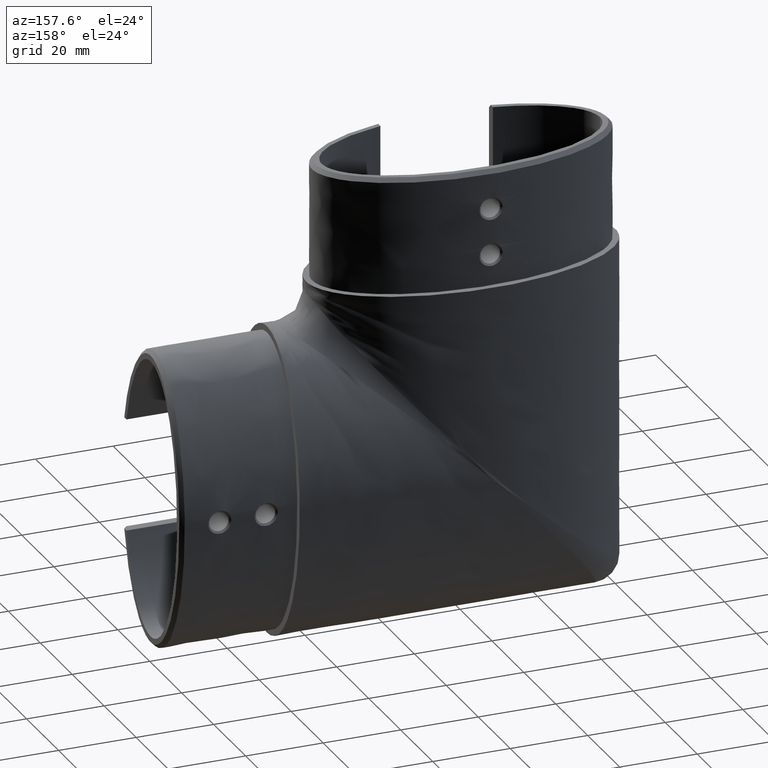
[diagram: clean part render]
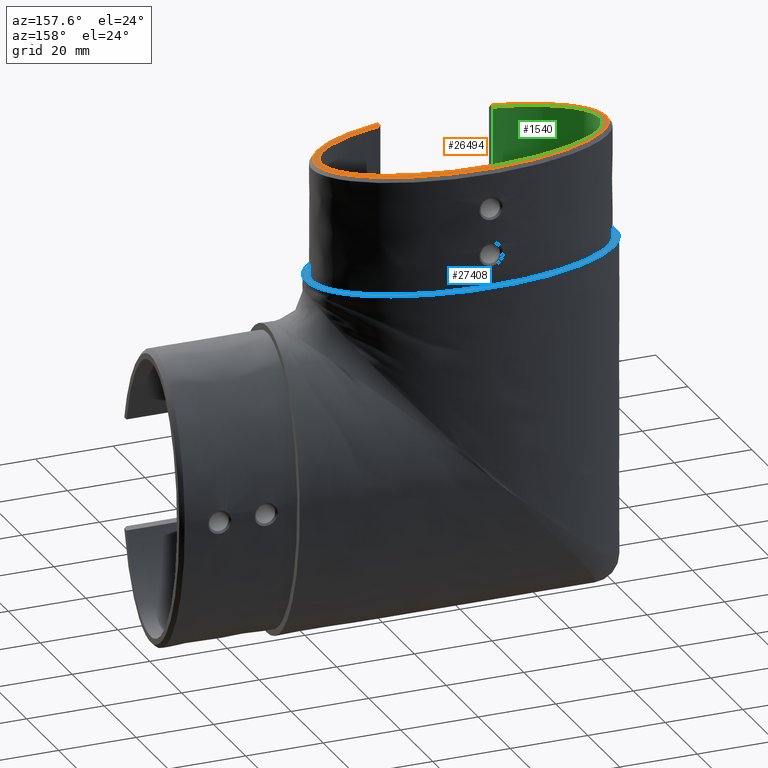
[diagram: same view with three faces highlighted in distinct colors, each labeled with its STEP entity id]
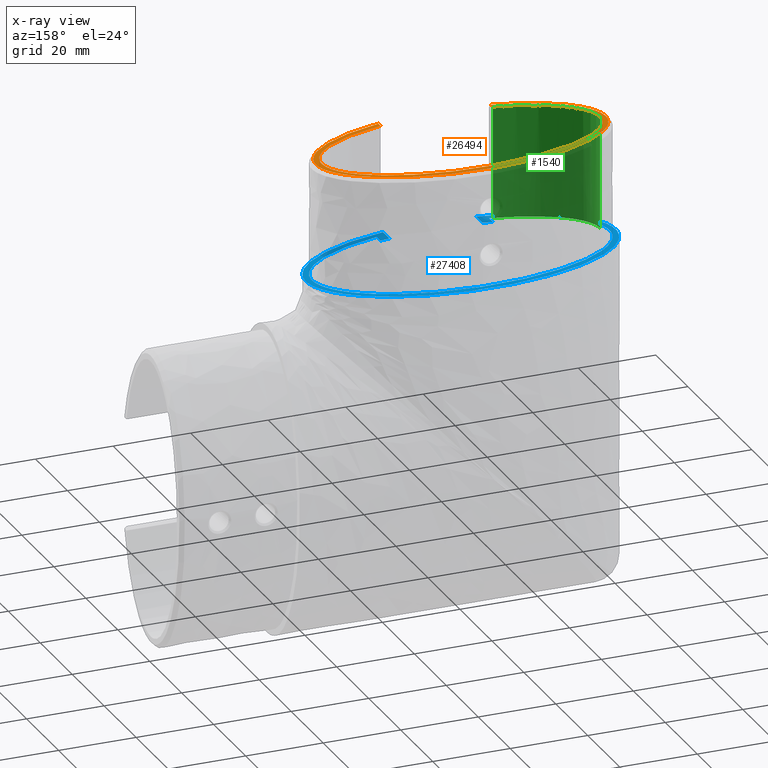
[diagram: x-ray of the same camera — body ghosted, the three highlighted faces saturated]
A machine part, auxiliary view with three faces highlighted in distinct colors.
The next image is the same camera in x-ray (body ghosted, the three faces saturated) — at least one of them is partly hidden behind the body in this view.
Their STEP definitions:

[orange] entity #26494 — the highlighted planar face has unit normal (-0, 0, 1).
#20 = CARTESIAN_POINT ( 'NONE',  ( -27.75625437119612116, 8.684330229393760092, 30.00000000000001421 ) ) ;
#21 = CARTESIAN_POINT ( 'NONE',  ( 31.53686695416843477, 11.09648706796510886, 30.00000000000000711 ) ) ;
#49 = CARTESIAN_POINT ( 'NONE',  ( 32.23620492371725987, 29.48315290797916788, 29.99999999999999645 ) ) ;
#55 = CARTESIAN_POINT ( 'NONE',  ( 18.47106287937606339, 36.11127991858981545, 30.00000000000000355 ) ) ;
#157 = CARTESIAN_POINT ( 'NONE',  ( 28.21540143420996571, 32.19652246505564364, 29.99999999999999289 ) ) ;
#223 = CARTESIAN_POINT ( 'NONE',  ( -19.69258355749042622, 5.377688444888367059, 30.00000000000000000 ) ) ;
#252 = CARTESIAN_POINT ( 'NONE',  ( 31.27149928018838665, 30.23151510577086043, 30.00000000000000000 ) ) ;
#359 = CARTESIAN_POINT ( 'NONE',  ( 22.80363132194519338, 34.69254381547936816, 29.99999999999999289 ) ) ;
#425 = CARTESIAN_POINT ( 'NONE',  ( -21.90295106909007927, 6.107957894857359626, 29.99999999999999645 ) ) ;
#463 = CARTESIAN_POINT ( 'NONE',  ( 11.71078598005746940, 37.59757147044558678, 29.99999999999999645 ) ) ;
#490 = CARTESIAN_POINT ( 'NONE',  ( 37.35317361241639844, 21.47296554199077434, 30.00000000000000355 ) ) ;
#564 = CARTESIAN_POINT ( 'NONE',  ( -9.140141870354364428, 37.96773719960258120, 29.99999999999999645 ) ) ;
#570 = CARTESIAN_POINT ( 'NONE',  ( -35.89999999999999147, 20.56608700989831107, 30.00000000000000000 ) ) ;
#594 = CARTESIAN_POINT ( 'NONE',  ( 36.31238577101395748, 16.40888288448667254, 30.00000000000000000 ) ) ;
#672 = CARTESIAN_POINT ( 'NONE',  ( 9.428729353266481539, 37.93105575060257451, 29.99999999999999645 ) ) ;
#703 = CARTESIAN_POINT ( 'NONE',  ( 36.09708279821652610, 25.11542483968434780, 30.00000000000000711 ) ) ;
#775 = CARTESIAN_POINT ( 'NONE',  ( -17.82414356455813476, 36.28947083610975710, 29.99999999999999289 ) ) ;
#800 = CARTESIAN_POINT ( 'NONE',  ( 35.31196770259911943, 26.31067859651901486, 30.00000000000000355 ) ) ;
#875 = CARTESIAN_POINT ( 'NONE',  ( 3.859754063651354539, 38.43318852312978606, 30.00000000000000000 ) ) ;
#904 = CARTESIAN_POINT ( 'NONE',  ( 37.35386866517234949, 19.70178754102391494, 30.00000000000000000 ) ) ;
#947 = CARTESIAN_POINT ( 'NONE',  ( 35.89999999999999858, 53.69826102969496873, 30.00000000000000355 ) ) ;
#973 = CARTESIAN_POINT ( 'NONE',  ( -31.11163452900958859, 30.34791141534390491, 29.99999999999999645 ) ) ;
#1075 = CARTESIAN_POINT ( 'NONE',  ( -27.49919347332508579, 32.58587294257395683, 29.99999999999999645 ) ) ;
#1175 = CARTESIAN_POINT ( 'NONE',  ( -20.05534448727390640, 35.64132305637039622, 30.00000000000000000 ) ) ;
#1278 = CARTESIAN_POINT ( 'NONE',  ( -33.31773329205817191, 28.53629018251151095, 30.00000000000000711 ) ) ;
#1298 = VECTOR ( 'NONE', #26916, 1000.000000000000000 ) ;
#1381 = CARTESIAN_POINT ( 'NONE',  ( -30.86266932134321550, 30.52649342310460057, 30.00000000000000355 ) ) ;
#1492 = CARTESIAN_POINT ( 'NONE',  ( -37.12062986383204333, 22.69207566813072319, 30.00000000000000355 ) ) ;
#1494 = CARTESIAN_POINT ( 'NONE',  ( 19.99719435143600421, 5.469892904183267568, 30.00000000000000711 ) ) ;
#1602 = CARTESIAN_POINT ( 'NONE',  ( -37.33837518877969330, 21.63607322082220108, 30.00000000000000000 ) ) ;
#1707 = CARTESIAN_POINT ( 'NONE',  ( -35.27746530465375230, 26.35730604571223523, 30.00000000000000000 ) ) ;
#1807 = CARTESIAN_POINT ( 'NONE',  ( -37.38743518700968593, 20.07704634336417371, 30.00000000000000000 ) ) ;
#1911 = CARTESIAN_POINT ( 'NONE',  ( -25.66517274795494075, 7.638232179531705413, 30.00000000000000000 ) ) ;
#2019 = CARTESIAN_POINT ( 'NONE',  ( -25.73294930230220245, 7.669618678584012805, 29.99999999999999645 ) ) ;
#2021 = CARTESIAN_POINT ( 'NONE',  ( 35.70020704207298934, 15.37680832233618133, 29.99999999999999289 ) ) ;
#2115 = CARTESIAN_POINT ( 'NONE',  ( -24.07327723913373774, 6.940982018402727327, 29.99999999999999645 ) ) ;
#2117 = CARTESIAN_POINT ( 'NONE',  ( 33.80448764737680278, 13.06803771549400572, 30.00000000000001421 ) ) ;
#2216 = CARTESIAN_POINT ( 'NONE',  ( -35.08967326832806322, 14.52767604521967115, 30.00000000000000355 ) ) ;
#2217 = CARTESIAN_POINT ( 'NONE',  ( 29.69992384549579612, 9.823326418699993567, 30.00000000000000711 ) ) ;
#2313 = CARTESIAN_POINT ( 'NONE',  ( -33.44101525091340221, 12.71314667281936117, 29.99999999999999289 ) ) ;
#2314 = CARTESIAN_POINT ( 'NONE',  ( 31.63145272643745542, 11.16864692614603882, 30.00000000000000711 ) ) ;
#2344 = CARTESIAN_POINT ( 'NONE',  ( 16.13581621809745670, 36.71530155551322849, 30.00000000000000355 ) ) ;
#2405 = CARTESIAN_POINT ( 'NONE',  ( 33.59333176298969192, 12.85916362206465280, 30.00000000000000000 ) ) ;
#2438 = CARTESIAN_POINT ( 'NONE',  ( 16.42118405838869677, 36.64692011493993817, 30.00000000000000000 ) ) ;
#2535 = CARTESIAN_POINT ( 'NONE',  ( 24.97817293560418861, 33.80401271918356088, 30.00000000000000711 ) ) ;
#2631 = CARTESIAN_POINT ( 'NONE',  ( 17.91499445623703934, 36.26574763743379748, 30.00000000000000000 ) ) ;
#2702 = CARTESIAN_POINT ( 'NONE',  ( -19.08039287125141570, 5.194900343118041164, 29.99999999999999645 ) ) ;
#2732 = CARTESIAN_POINT ( 'NONE',  ( 19.59215751258812688, 35.78616298864212553, 29.99999999999999645 ) ) ;
#2834 = CARTESIAN_POINT ( 'NONE',  ( 7.132137105793803222, 38.19016272999364503, 30.00000000000000711 ) ) ;
#2863 = CARTESIAN_POINT ( 'NONE',  ( 36.86867840775673955, 23.48037631244525159, 30.00000000000000000 ) ) ;
#2944 = CARTESIAN_POINT ( 'NONE',  ( -9.720752695141298361, 37.89374238939829809, 30.00000000000000711 ) ) ;
#2974 = CARTESIAN_POINT ( 'NONE',  ( 37.27346434602478098, 19.12091075805971130, 30.00000000000000355 ) ) ;
#3042 = CARTESIAN_POINT ( 'NONE',  ( 4.246157844609703247, 38.41216662294732487, 30.00000000000000711 ) ) ;
#3072 = CARTESIAN_POINT ( 'NONE',  ( 37.31103317313432655, 21.76493679789231450, 30.00000000000001421 ) ) ;
#3143 = CARTESIAN_POINT ( 'NONE',  ( 7.326009067964477595, 38.17119141671808080, 30.00000000000000711 ) ) ;
#3168 = CARTESIAN_POINT ( 'NONE',  ( 37.08136304201973132, 18.30772073839711567, 30.00000000000000355 ) ) ;
#3242 = CARTESIAN_POINT ( 'NONE',  ( -28.61149353471264334, 31.96711945597192184, 30.00000000000001066 ) ) ;
#3273 = CARTESIAN_POINT ( 'NONE',  ( 36.77818818169988191, 17.41898120180018594, 29.99999999999999289 ) ) ;
#3291 = CARTESIAN_POINT ( 'NONE',  ( -35.89999999999998437, 13.80579487331595523, 30.00000000000000000 ) ) ;
#3342 = CARTESIAN_POINT ( 'NONE',  ( -25.39692336053690269, 33.61869013850711951, 30.00000000000000355 ) ) ;
#3440 = CARTESIAN_POINT ( 'NONE',  ( -18.37869988423659606, 36.13720330116518653, 30.00000000000000000 ) ) ;
#3515 = CARTESIAN_POINT ( 'NONE',  ( 35.90000000000000568, 20.56608700989832172, 30.00000000000000000 ) ) ;
#3542 = CARTESIAN_POINT ( 'NONE',  ( -25.01061376236001621, 33.78967174517391214, 29.99999999999998934 ) ) ;
#3642 = CARTESIAN_POINT ( 'NONE',  ( -24.94648665066137383, 33.81794221853966320, 30.00000000000000355 ) ) ;
#3748 = CARTESIAN_POINT ( 'NONE',  ( -37.23037364495003487, 22.21554017988041352, 30.00000000000000711 ) ) ;
#3854 = CARTESIAN_POINT ( 'NONE',  ( -34.54293878837263065, 27.26784634192063805, 30.00000000000000000 ) ) ;
#3922 = ORIENTED_EDGE ( 'NONE', *, *, #5767, .T. ) ;
#3961 = CARTESIAN_POINT ( 'NONE',  ( -37.38110169467502431, 21.24483343450022943, 29.99999999999999289 ) ) ;
#4070 = CARTESIAN_POINT ( 'NONE',  ( -37.40204365532528641, 20.66142340720032422, 30.00000000000000000 ) ) ;
#4175 = CARTESIAN_POINT ( 'NONE',  ( -36.74322666225123157, 23.80813124015941185, 29.99999999999999645 ) ) ;
#4283 = CARTESIAN_POINT ( 'NONE',  ( -34.25651712554969208, 13.54458978605053510, 29.99999999999999645 ) ) ;
#4383 = CARTESIAN_POINT ( 'NONE',  ( -25.22904638682861034, 7.437609167365478946, 30.00000000000000711 ) ) ;
#4385 = CARTESIAN_POINT ( 'NONE',  ( 34.23895539218408857, 13.52557918677793580, 29.99999999999999645 ) ) ;
#4481 = CARTESIAN_POINT ( 'NONE',  ( -32.70383234723821886, 12.03360224959206803, 30.00000000000000000 ) ) ;
#4483 = CARTESIAN_POINT ( 'NONE',  ( 25.53600502635249470, 7.578690979297867614, 29.99999999999999645 ) ) ;
#4576 = CARTESIAN_POINT ( 'NONE',  ( -23.61794141833521365, 6.756482654982484348, 30.00000000000000000 ) ) ;
#4577 = CARTESIAN_POINT ( 'NONE',  ( 25.98453851675396109, 7.785495164610103380, 30.00000000000000000 ) ) ;
#4608 = CARTESIAN_POINT ( 'NONE',  ( 20.83418191272491882, 35.38999064646698400, 30.00000000000000711 ) ) ;
#4672 = CARTESIAN_POINT ( 'NONE',  ( -35.01314755946093982, 14.43031754109106402, 29.99999999999998934 ) ) ;
#4673 = CARTESIAN_POINT ( 'NONE',  ( 27.67098332800016536, 8.638356022706501491, 30.00000000000000355 ) ) ;
#4702 = CARTESIAN_POINT ( 'NONE',  ( 18.61227373320673806, 36.07154693436604731, 30.00000000000000000 ) ) ;
#4767 = CARTESIAN_POINT ( 'NONE',  ( 34.97880232921297505, 14.38698826182104895, 29.99999999999999645 ) ) ;
#4803 = CARTESIAN_POINT ( 'NONE',  ( 25.51939064355895326, 33.56159258028120007, 29.99999999999999645 ) ) ;
#4897 = CARTESIAN_POINT ( 'NONE',  ( 18.94053826870215218, 35.97780048696428423, 30.00000000000000355 ) ) ;
#4995 = CARTESIAN_POINT ( 'NONE',  ( 32.00614364241882015, 29.66881997890253686, 30.00000000000000000 ) ) ;
#5066 = CARTESIAN_POINT ( 'NONE',  ( -21.57914021984875319, 5.994493412848650671, 30.00000000000000711 ) ) ;
#5092 = CARTESIAN_POINT ( 'NONE',  ( 9.620466727644426896, 37.90601533889621066, 29.99999999999998934 ) ) ;
#5139 = EDGE_LOOP ( 'NONE', ( #3922, #25768, #24105, #14653, #13000, #27767 ) ) ;
#5193 = CARTESIAN_POINT ( 'NONE',  ( -11.26034436849421816, 37.66961572908685696, 30.00000000000000355 ) ) ;
#5219 = CARTESIAN_POINT ( 'NONE',  ( 37.15530570951803213, 18.58883681230290819, 30.00000000000000711 ) ) ;
#5243 = CARTESIAN_POINT ( 'NONE',  ( -14.50000000000001421, 5.411376512662530835, 30.00000000000000000 ) ) ;
#5296 = CARTESIAN_POINT ( 'NONE',  ( -6.242444949822655964, 38.27055267879634926, 29.99999999999999289 ) ) ;
#5325 = CARTESIAN_POINT ( 'NONE',  ( 37.39778576534909860, 20.78897947278990443, 30.00000000000000000 ) ) ;
#5392 = CARTESIAN_POINT ( 'NONE',  ( -15.84661918083351750, 36.78311755788021742, 29.99999999999998579 ) ) ;
#5423 = CARTESIAN_POINT ( 'NONE',  ( 35.35669156360419407, 26.24986347021572541, 30.00000000000001066 ) ) ;
#5498 = CARTESIAN_POINT ( 'NONE',  ( 13.41522369589922903, 37.29720203601961259, 30.00000000000000355 ) ) ;
#5524 = CARTESIAN_POINT ( 'NONE',  ( 37.40076991928464878, 20.59146738977563729, 30.00000000000000711 ) ) ;
#5569 = VERTEX_POINT ( 'NONE', #24762 ) ;
#5595 = CARTESIAN_POINT ( 'NONE',  ( -31.80178378791379856, 29.83405390560208659, 30.00000000000000355 ) ) ;
#5612 = CARTESIAN_POINT ( 'NONE',  ( -14.50000000000001421, 5.411376512662530835, 30.00000000000000000 ) ) ;
#5621 = CARTESIAN_POINT ( 'NONE',  ( 37.27935106198907533, 21.95959116340516815, 30.00000000000000000 ) ) ;
#5694 = CARTESIAN_POINT ( 'NONE',  ( -29.10664303062490177, 31.67288060758130541, 30.00000000000000355 ) ) ;
#5767 = EDGE_CURVE ( 'NONE', #6187, #11424, #26544, .T. ) ;
#5789 = CARTESIAN_POINT ( 'NONE',  ( -29.16682835289015330, 31.63643065186882808, 29.99999999999999645 ) ) ;
#5892 = CARTESIAN_POINT ( 'NONE',  ( -32.13637269694731202, 29.56411851267075619, 30.00000000000001066 ) ) ;
#5994 = CARTESIAN_POINT ( 'NONE',  ( -29.53093677014807028, 31.41495734359348901, 30.00000000000000000 ) ) ;
#6099 = CARTESIAN_POINT ( 'NONE',  ( -35.86088231453241093, 15.62488184416469039, 30.00000000000000000 ) ) ;
#6187 = VERTEX_POINT ( 'NONE', #11065 ) ;
#6208 = CARTESIAN_POINT ( 'NONE',  ( -34.58887684922432726, 27.21489192212640873, 30.00000000000000355 ) ) ;
#6318 = CARTESIAN_POINT ( 'NONE',  ( -35.30593659817990471, 26.31886100520238259, 30.00000000000000355 ) ) ;
#6418 = CARTESIAN_POINT ( 'NONE',  ( -36.39315343100143707, 24.56821096001793592, 30.00000000000000000 ) ) ;
#6518 = CARTESIAN_POINT ( 'NONE',  ( -36.29979599571387894, 16.38501565529408666, 30.00000000000000355 ) ) ;
#6621 = CARTESIAN_POINT ( 'NONE',  ( -31.65738306849468486, 11.18853969218782574, 30.00000000000000000 ) ) ;
#6622 = CARTESIAN_POINT ( 'NONE',  ( 21.23987839106805708, 5.877866513642609370, 29.99999999999999645 ) ) ;
#6722 = CARTESIAN_POINT ( 'NONE',  ( -24.70235269102087727, 7.204337782952262792, 29.99999999999999645 ) ) ;
#6724 = CARTESIAN_POINT ( 'NONE',  ( 35.99465411480991861, 15.83864520924608676, 30.00000000000000711 ) ) ;
#6818 = CARTESIAN_POINT ( 'NONE',  ( -34.09503202381738873, 13.36973458758753708, 30.00000000000000355 ) ) ;
#6820 = CARTESIAN_POINT ( 'NONE',  ( 27.56599434173386953, 8.582114496891710687, 30.00000000000001066 ) ) ;
#6919 = CARTESIAN_POINT ( 'NONE',  ( -35.72558056244621127, 15.41545569088092016, 30.00000000000000000 ) ) ;
#6920 = CARTESIAN_POINT ( 'NONE',  ( 30.08213078064092372, 10.06703141988821137, 30.00000000000000711 ) ) ;
#6955 = CARTESIAN_POINT ( 'NONE',  ( 24.53642336976793459, 33.99759059061277355, 30.00000000000001066 ) ) ;
#7022 = CARTESIAN_POINT ( 'NONE',  ( -33.89575224913317442, 13.16097889777457297, 30.00000000000000711 ) ) ;
#7023 = CARTESIAN_POINT ( 'NONE',  ( 34.91809983627998548, 14.31136216404213002, 29.99999999999998579 ) ) ;
#7054 = CARTESIAN_POINT ( 'NONE',  ( 31.07047897839390771, 30.37767934680066517, 30.00000000000000711 ) ) ;
#7116 = CARTESIAN_POINT ( 'NONE',  ( 33.41485094020975311, 12.68814711609164547, 29.99999999999999289 ) ) ;
#7150 = CARTESIAN_POINT ( 'NONE',  ( 31.02999444254065509, 30.40684243290833066, 30.00000000000001066 ) ) ;
#7244 = CARTESIAN_POINT ( 'NONE',  ( 16.70384259648169589, 36.57821738241698029, 30.00000000000000355 ) ) ;
#7342 = CARTESIAN_POINT ( 'NONE',  ( 29.08145038196349930, 31.68808557742980270, 30.00000000000001066 ) ) ;
#7439 = CARTESIAN_POINT ( 'NONE',  ( -3.915004837257814785, 38.43031151202990259, 30.00000000000000711 ) ) ;
#7503 = CARTESIAN_POINT ( 'NONE',  ( 14.49999999999991473, 4.052433417156948714, 30.00000000000000000 ) ) ;
#7542 = CARTESIAN_POINT ( 'NONE',  ( 8.856965514599549394, 38.00353764119314803, 29.99999999999999645 ) ) ;
#7572 = CARTESIAN_POINT ( 'NONE',  ( 36.30179242555406915, 16.38879481307530739, 29.99999999999999645 ) ) ;
#7646 = CARTESIAN_POINT ( 'NONE',  ( -13.75439312492137311, 37.23053852675568720, 29.99999999999999645 ) ) ;
#7677 = CARTESIAN_POINT ( 'NONE',  ( 35.94300431054741551, 25.37371723813187074, 30.00000000000000711 ) ) ;
#7752 = CARTESIAN_POINT ( 'NONE',  ( -16.12737042618579153, 36.71730568064581490, 29.99999999999999289 ) ) ;
#7780 = CARTESIAN_POINT ( 'NONE',  ( 37.21381595809954490, 18.83048170266159715, 30.00000000000000355 ) ) ;
#7857 = CARTESIAN_POINT ( 'NONE',  ( -9.234757137328575283, 37.95584650800709881, 29.99999999999999289 ) ) ;
#7881 = CARTESIAN_POINT ( 'NONE',  ( 36.50401136476521913, 24.34074818805865448, 30.00000000000000000 ) ) ;
#7948 = CARTESIAN_POINT ( 'NONE',  ( -31.45298495959665530, 30.10003202093875174, 30.00000000000000355 ) ) ;
#7971 = CARTESIAN_POINT ( 'NONE',  ( 37.38229967799026809, 19.99853319746576474, 30.00000000000000355 ) ) ;
#8038 = CARTESIAN_POINT ( 'NONE',  ( -22.70346195068699657, 34.73034047908714683, 29.99999999999999645 ) ) ;
#8107 = CARTESIAN_POINT ( 'NONE',  ( 33.12701074304219873, 28.71444657891863628, 30.00000000000000355 ) ) ;
#8132 = CARTESIAN_POINT ( 'NONE',  ( -32.21037492563909410, 29.50403515923922626, 30.00000000000000711 ) ) ;
#8142 = CARTESIAN_POINT ( 'NONE',  ( 34.25517624226808522, 27.59600063880377618, 29.99999999999999289 ) ) ;
#8231 = CARTESIAN_POINT ( 'NONE',  ( -32.36539081823776343, 29.37670707587346186, 29.99999999999999289 ) ) ;
#8339 = CARTESIAN_POINT ( 'NONE',  ( -33.82148186256711142, 28.04949506370438783, 30.00000000000000711 ) ) ;
#8450 = CARTESIAN_POINT ( 'NONE',  ( -37.18853896324839781, 22.40615063156443654, 30.00000000000000355 ) ) ;
#8557 = CARTESIAN_POINT ( 'NONE',  ( -35.23455417563650371, 26.41494199994486536, 29.99999999999999645 ) ) ;
#8559 = CARTESIAN_POINT ( 'NONE',  ( 23.16677044490061732, 6.578412015891201392, 30.00000000000000355 ) ) ;
#8660 = CARTESIAN_POINT ( 'NONE',  ( -37.28771489791380134, 19.20195865000008695, 30.00000000000001066 ) ) ;
#8766 = CARTESIAN_POINT ( 'NONE',  ( -37.15073804024051896, 18.57057214363877051, 29.99999999999999645 ) ) ;
#8767 = CARTESIAN_POINT ( 'NONE',  ( 18.72980991063700174, 5.093207287127182070, 30.00000000000000000 ) ) ;
#8863 = CARTESIAN_POINT ( 'NONE',  ( -37.21945946284662199, 18.86293886484855165, 30.00000000000000000 ) ) ;
#8901 = CARTESIAN_POINT ( 'NONE',  ( 32.46907919461574465, 29.29183020084200706, 29.99999999999999645 ) ) ;
#8964 = CARTESIAN_POINT ( 'NONE',  ( -35.56481562893917925, 15.17391914408746878, 29.99999999999999289 ) ) ;
#8966 = CARTESIAN_POINT ( 'NONE',  ( 21.66229301907408455, 6.022052201287825035, 30.00000000000000000 ) ) ;
#9062 = CARTESIAN_POINT ( 'NONE',  ( -34.45630496120732289, 13.76536844784195246, 29.99999999999999645 ) ) ;
#9064 = CARTESIAN_POINT ( 'NONE',  ( 29.45699481342954584, 9.670283068433445095, 30.00000000000001066 ) ) ;
#9161 = CARTESIAN_POINT ( 'NONE',  ( -35.19508128848025308, 14.66419025552307254, 29.99999999999999645 ) ) ;
#9163 = CARTESIAN_POINT ( 'NONE',  ( 33.38067238796806180, 12.65562456330499863, 29.99999999999999289 ) ) ;
#9168 = CARTESIAN_POINT ( 'NONE',  ( 0.000000000000000000, 0.000000000000000000, 30.00000000000000000 ) ) ;
#9221 = VERTEX_POINT ( 'NONE', #12598 ) ;
#9262 = CARTESIAN_POINT ( 'NONE',  ( -34.68105784768106759, 14.02207807083942726, 30.00000000000001066 ) ) ;
#9263 = CARTESIAN_POINT ( 'NONE',  ( 27.62901936777984346, 8.615843465989991401, 30.00000000000000000 ) ) ;
#9294 = CARTESIAN_POINT ( 'NONE',  ( 29.63208434242947931, 31.34960751881643048, 29.99999999999999645 ) ) ;
#9362 = CARTESIAN_POINT ( 'NONE',  ( -29.84337929165578984, 9.914990087721065493, 30.00000000000000000 ) ) ;
#9363 = CARTESIAN_POINT ( 'NONE',  ( 35.16291403661661974, 14.62062266050094728, 29.99999999999998934 ) ) ;
#9394 = CARTESIAN_POINT ( 'NONE',  ( 23.36088860913357834, 34.47834490874350877, 30.00000000000000000 ) ) ;
#9454 = CARTESIAN_POINT ( 'NONE',  ( 34.20629045934995816, 13.49022030130722882, 29.99999999999999645 ) ) ;
#9488 = CARTESIAN_POINT ( 'NONE',  ( 15.67187098978691040, 36.82452554757637131, 30.00000000000000000 ) ) ;
#9560 = CARTESIAN_POINT ( 'NONE',  ( -16.05934737936240708, 4.377231913228806448, 30.00000000000001066 ) ) ;
#9592 = CARTESIAN_POINT ( 'NONE',  ( 13.97846176521334627, 37.18617070917361644, 30.00000000000000711 ) ) ;
#9691 = CARTESIAN_POINT ( 'NONE',  ( 24.00119029479109400, 34.22330538386174936, 30.00000000000000000 ) ) ;
#9787 = CARTESIAN_POINT ( 'NONE',  ( 2.699837114246557146, 38.48422343069690754, 29.99999999999999289 ) ) ;
#9865 = CARTESIAN_POINT ( 'NONE',  ( 33.42299505233553703, 28.43798833702230766, 29.99999999999999289 ) ) ;
#9896 = CARTESIAN_POINT ( 'NONE',  ( -5.079861403985546531, 38.35994918504304252, 30.00000000000000711 ) ) ;
#9928 = CARTESIAN_POINT ( 'NONE',  ( 36.24519056055015653, 16.28273493894059243, 30.00000000000000355 ) ) ;
#10001 = CARTESIAN_POINT ( 'NONE',  ( -8.948070330572186037, 37.99148172901633558, 30.00000000000000355 ) ) ;
#10029 = CARTESIAN_POINT ( 'NONE',  ( 35.81696031178963580, 25.57831269877074476, 30.00000000000001066 ) ) ;
#10102 = CARTESIAN_POINT ( 'NONE',  ( -17.17026319787837352, 36.46259227521620261, 30.00000000000000000 ) ) ;
#10133 = CARTESIAN_POINT ( 'NONE',  ( 36.98403739372334087, 17.97856205541977914, 30.00000000000000000 ) ) ;
#10205 = CARTESIAN_POINT ( 'NONE',  ( -5.662103928362324012, 38.31864680294837910, 30.00000000000000711 ) ) ;
#10230 = CARTESIAN_POINT ( 'NONE',  ( 36.88559706950700701, 17.69679423015372066, 30.00000000000000000 ) ) ;
#10302 = CARTESIAN_POINT ( 'NONE',  ( -18.85030491729638769, 36.00471471241100119, 30.00000000000000711 ) ) ;
#10326 = CARTESIAN_POINT ( 'NONE',  ( 35.45937914860530071, 26.10782548873038778, 30.00000000000000000 ) ) ;
#10394 = CARTESIAN_POINT ( 'NONE',  ( -22.83531873661569378, 34.68055966256680733, 29.99999999999999645 ) ) ;
#10493 = CARTESIAN_POINT ( 'NONE',  ( -34.15876146560048454, 27.69642284783029851, 30.00000000000000000 ) ) ;
#10566 = CARTESIAN_POINT ( 'NONE',  ( -14.49999999999946709, -1.469008476346425012E-12, 30.00000000000000000 ) ) ;
#10598 = CARTESIAN_POINT ( 'NONE',  ( -26.99443437825647862, 32.84647928443376230, 30.00000000000000355 ) ) ;
#10704 = CARTESIAN_POINT ( 'NONE',  ( -21.62116622386289322, 35.12520325694519840, 30.00000000000000355 ) ) ;
#10810 = CARTESIAN_POINT ( 'NONE',  ( -35.76669453226465833, 15.47824034122009351, 29.99999999999999645 ) ) ;
#10921 = CARTESIAN_POINT ( 'NONE',  ( -36.51953141760063914, 24.30819918018161019, 29.99999999999999645 ) ) ;
#10923 = CARTESIAN_POINT ( 'NONE',  ( 19.43244520678550913, 5.297952120367221518, 30.00000000000000355 ) ) ;
#11029 = CARTESIAN_POINT ( 'NONE',  ( -36.81040747634622079, 17.50128048321677454, 30.00000000000000000 ) ) ;
#11065 = CARTESIAN_POINT ( 'NONE',  ( 14.50000000000001421, 5.411376512662530835, 30.00000000000000000 ) ) ;
#11138 = CARTESIAN_POINT ( 'NONE',  ( -35.45248537093220875, 26.11894879715243079, 30.00000000000000000 ) ) ;
#11140 = CARTESIAN_POINT ( 'NONE',  ( 15.28253307527617011, 4.215428271092964252, 30.00000000000000711 ) ) ;
#11241 = CARTESIAN_POINT ( 'NONE',  ( -37.09117919341774439, 18.33819074934516635, 29.99999999999999645 ) ) ;
#11243 = CARTESIAN_POINT ( 'NONE',  ( 18.96003370753750161, 5.159750950583388729, 29.99999999999999289 ) ) ;
#11302 = AXIS2_PLACEMENT_3D ( 'NONE', #9168, #16126, #20525 ) ;
#11338 = CARTESIAN_POINT ( 'NONE',  ( -27.33286378225900037, 8.456711936223829440, 30.00000000000000711 ) ) ;
#11340 = CARTESIAN_POINT ( 'NONE',  ( 22.21787790627428194, 6.219061756411206510, 30.00000000000000355 ) ) ;
#11424 = VERTEX_POINT ( 'NONE', #7503 ) ;
#11442 = CARTESIAN_POINT ( 'NONE',  ( -29.37355149171167668, 9.616016463921576829, 30.00000000000000000 ) ) ;
#11444 = CARTESIAN_POINT ( 'NONE',  ( 23.84696225059944652, 6.847083626600752204, 30.00000000000000000 ) ) ;
#11541 = CARTESIAN_POINT ( 'NONE',  ( -35.39979860315485638, 14.93796798621237976, 30.00000000000001066 ) ) ;
#11543 = CARTESIAN_POINT ( 'NONE',  ( 29.65960027536042887, 9.797747918501386266, 30.00000000000000000 ) ) ;
#11569 = CARTESIAN_POINT ( 'NONE',  ( 32.07921743102066614, 29.61039401302264906, 30.00000000000000711 ) ) ;
#11636 = CARTESIAN_POINT ( 'NONE',  ( -31.69756352144278111, 11.21946642680824091, 30.00000000000000000 ) ) ;
#11637 = CARTESIAN_POINT ( 'NONE',  ( 34.15712071592395915, 13.43721923695791531, 30.00000000000000000 ) ) ;
#11666 = CARTESIAN_POINT ( 'NONE',  ( 29.05880166543085963, 31.70172589823856057, 30.00000000000000000 ) ) ;
#11734 = CARTESIAN_POINT ( 'NONE',  ( -34.99697683696459194, 14.40991942114240132, 30.00000000000000000 ) ) ;
#11735 = CARTESIAN_POINT ( 'NONE',  ( 28.06706032371823767, 8.851851617385252169, 30.00000000000001421 ) ) ;
#11769 = CARTESIAN_POINT ( 'NONE',  ( 27.17724954843793128, 32.75234245240980613, 30.00000000000000711 ) ) ;
#11802 = DIRECTION ( 'NONE',  ( -7.434327193616546984E-14, -1.000000000000000000, 0.000000000000000000 ) ) ;
#11859 = CARTESIAN_POINT ( 'NONE',  ( 15.11167737628795038, 36.95088956143150227, 30.00000000000000000 ) ) ;
#11928 = CARTESIAN_POINT ( 'NONE',  ( -21.43963284168442840, 5.946298379177665794, 30.00000000000000000 ) ) ;
#11960 = CARTESIAN_POINT ( 'NONE',  ( 31.00852542563293213, 30.42225873205432052, 30.00000000000000355 ) ) ;
#12058 = CARTESIAN_POINT ( 'NONE',  ( 22.87372223943471639, 34.66599575215310125, 30.00000000000000000 ) ) ;
#12156 = CARTESIAN_POINT ( 'NONE',  ( -12.03061816423732289, 37.54561185016928704, 29.99999999999999645 ) ) ;
#12257 = CARTESIAN_POINT ( 'NONE',  ( 12.18771059249086797, 37.51828871201280435, 30.00000000000000355 ) ) ;
#12288 = CARTESIAN_POINT ( 'NONE',  ( 36.55725245866951667, 24.22764731094153845, 30.00000000000000000 ) ) ;
#12363 = CARTESIAN_POINT ( 'NONE',  ( -14.32825958064363903, 37.11638916620982798, 29.99999999999999289 ) ) ;
#12388 = CARTESIAN_POINT ( 'NONE',  ( 37.20428214899975927, 22.34464067664035980, 30.00000000000000711 ) ) ;
#12466 = CARTESIAN_POINT ( 'NONE',  ( -4.301847813335221815, 38.40898192378490705, 30.00000000000000000 ) ) ;
#12493 = CARTESIAN_POINT ( 'NONE',  ( 36.41769676738885408, 16.61023702312990480, 30.00000000000000355 ) ) ;
#12559 = CARTESIAN_POINT ( 'NONE',  ( -1.582254905982513504, 38.51937057083596727, 30.00000000000000355 ) ) ;
#12585 = CARTESIAN_POINT ( 'NONE',  ( 37.26128826061226107, 22.05906339360853607, 30.00000000000000711 ) ) ;
#12598 = CARTESIAN_POINT ( 'NONE',  ( 35.90000000000000568, 20.56608700989832172, 30.00000000000000000 ) ) ;
#12646 = CARTESIAN_POINT ( 'NONE',  ( 35.90000000000000568, 20.56608700989832172, 30.00000000000000000 ) ) ;
#12656 = CARTESIAN_POINT ( 'NONE',  ( -32.59352557468158551, 29.18641047040032177, 29.99999999999999645 ) ) ;
#12750 = CARTESIAN_POINT ( 'NONE',  ( -26.84480742794946906, 32.92273118661307763, 29.99999999999999645 ) ) ;
#12854 = CARTESIAN_POINT ( 'NONE',  ( -23.25190087407820982, 34.52206449488385687, 29.99999999999999289 ) ) ;
#12954 = CARTESIAN_POINT ( 'NONE',  ( -31.09353576140091135, 30.36101478805632681, 29.99999999999999645 ) ) ;
#13000 = ORIENTED_EDGE ( 'NONE', *, *, #26772, .F. ) ;
#13060 = CARTESIAN_POINT ( 'NONE',  ( -24.98994645233630862, 33.79879667919931308, 29.99999999999999645 ) ) ;
#13173 = CARTESIAN_POINT ( 'NONE',  ( -36.58742724638607768, 16.96274150037104533, 29.99999999999999645 ) ) ;
#13276 = CARTESIAN_POINT ( 'NONE',  ( -35.89711609045283325, 25.44837920414420651, 30.00000000000000000 ) ) ;
#13278 = CARTESIAN_POINT ( 'NONE',  ( 19.00436261520895087, 5.172660670230941449, 29.99999999999999645 ) ) ;
#13379 = CARTESIAN_POINT ( 'NONE',  ( -35.31941849448371329, 26.30056380328634802, 29.99999999999999645 ) ) ;
#13381 = CARTESIAN_POINT ( 'NONE',  ( 17.75562245207522238, 4.821624381201211840, 30.00000000000000000 ) ) ;
#13482 = CARTESIAN_POINT ( 'NONE',  ( -36.70285043035902817, 17.22993923438328778, 30.00000000000000711 ) ) ;
#13484 = CARTESIAN_POINT ( 'NONE',  ( 20.64551997632133506, 5.679040139995421121, 30.00000000000000355 ) ) ;
#13585 = CARTESIAN_POINT ( 'NONE',  ( -36.94441292590239101, 23.26018032775368383, 30.00000000000000000 ) ) ;
#13692 = CARTESIAN_POINT ( 'NONE',  ( -28.87920616150194064, 9.315019756195541234, 29.99999999999999645 ) ) ;
#13694 = CARTESIAN_POINT ( 'NONE',  ( 23.30065644942052927, 6.630789448532204311, 30.00000000000000000 ) ) ;
#13786 = CARTESIAN_POINT ( 'NONE',  ( -27.71208567952310631, 8.660477849922898486, 30.00000000000000355 ) ) ;
#13787 = CARTESIAN_POINT ( 'NONE',  ( 31.99049235839174088, 11.44467823263688011, 30.00000000000000000 ) ) ;
#13888 = CARTESIAN_POINT ( 'NONE',  ( -26.81999581574131142, 8.191722685867960152, 29.99999999999998934 ) ) ;
#13890 = CARTESIAN_POINT ( 'NONE',  ( 30.57973588070889903, 10.39917268158429486, 30.00000000000000711 ) ) ;
#13982 = CARTESIAN_POINT ( 'NONE',  ( -23.52633546408408449, 6.719907329562611054, 30.00000000000000355 ) ) ;
#13983 = CARTESIAN_POINT ( 'NONE',  ( 34.25438536112890375, 13.54234853308222775, 30.00000000000000000 ) ) ;
#14013 = CARTESIAN_POINT ( 'NONE',  ( 21.16098076763800151, 35.28120861150209464, 30.00000000000000000 ) ) ;
#14081 = CARTESIAN_POINT ( 'NONE',  ( -29.73740064334542410, 9.847177554108764497, 30.00000000000000000 ) ) ;
#14082 = CARTESIAN_POINT ( 'NONE',  ( 31.13338937097291748, 10.79544460023032393, 30.00000000000000000 ) ) ;
#14113 = CARTESIAN_POINT ( 'NONE',  ( 22.73237474576843198, 34.71944533626522400, 30.00000000000000355 ) ) ;
#14201 = CARTESIAN_POINT ( 'NONE',  ( 17.35954267987737865, 36.41377879339598422, 30.00000000000000000 ) ) ;
#14303 = CARTESIAN_POINT ( 'NONE',  ( 20.59947320363319889, 35.46685602481556998, 30.00000000000001421 ) ) ;
#14397 = CARTESIAN_POINT ( 'NONE',  ( 28.71372650312682495, 31.90902371058100684, 30.00000000000000711 ) ) ;
#14478 =( BOUNDED_CURVE ( )  B_SPLINE_CURVE ( 3, ( #26138, #14492, #22331, #12646 ),
 .UNSPECIFIED., .F., .T. ) 
 B_SPLINE_CURVE_WITH_KNOTS ( ( 4, 4 ),
 ( 5.128164742371810192, 6.283185307179586232 ),
 .UNSPECIFIED. ) 
 CURVE ( )  GEOMETRIC_REPRESENTATION_ITEM ( )  RATIONAL_B_SPLINE_CURVE ( ( 1.000000000000000000, 0.8918829872383710056, 0.8918829872383710056, 1.000000000000000000 ) ) 
 REPRESENTATION_ITEM ( '' )  );
#14492 = CARTESIAN_POINT ( 'NONE',  ( 27.90194034934896550, 8.141856623538417992, 30.00000000000000000 ) ) ;
#14500 = CARTESIAN_POINT ( 'NONE',  ( -7.985055298791647438, 38.10434552174891110, 29.99999999999999289 ) ) ;
#14531 = CARTESIAN_POINT ( 'NONE',  ( 36.98706412549226030, 23.13171505675324724, 30.00000000000000000 ) ) ;
#14580 = EDGE_CURVE ( 'NONE', #6187, #9221, #14478, .T. ) ;
#14606 = CARTESIAN_POINT ( 'NONE',  ( 9.331527205351918042, 37.94354422002444238, 29.99999999999999289 ) ) ;
#14640 = CARTESIAN_POINT ( 'NONE',  ( 36.96338740790838528, 23.20338017698154687, 30.00000000000000000 ) ) ;
#14653 = ORIENTED_EDGE ( 'NONE', *, *, #27737, .F. ) ;
#14712 = CARTESIAN_POINT ( 'NONE',  ( -15.56391482390574943, 36.84845123046128634, 30.00000000000000355 ) ) ;
#14740 = CARTESIAN_POINT ( 'NONE',  ( 37.37916586939116570, 21.18102516319255102, 30.00000000000001066 ) ) ;
#14811 = CARTESIAN_POINT ( 'NONE',  ( -10.30113338948237178, 37.81463516482472187, 30.00000000000000355 ) ) ;
#14838 = CARTESIAN_POINT ( 'NONE',  ( 35.28199292948360721, 26.35120905975827199, 30.00000000000000711 ) ) ;
#14905 = CARTESIAN_POINT ( 'NONE',  ( 11.90174272112436960, 37.56608208035029861, 30.00000000000000000 ) ) ;
#14929 = CARTESIAN_POINT ( 'NONE',  ( 34.62204813240424528, 27.17653773343413093, 30.00000000000000711 ) ) ;
#15006 = CARTESIAN_POINT ( 'NONE',  ( -30.99770513282179607, 30.43009140488926079, 29.99999999999999289 ) ) ;
#15097 = CARTESIAN_POINT ( 'NONE',  ( -27.12117372023995898, 32.78132103865527824, 30.00000000000000000 ) ) ;
#15194 = CARTESIAN_POINT ( 'NONE',  ( -19.41083516565462119, 35.84089742923882937, 30.00000000000000355 ) ) ;
#15296 = CARTESIAN_POINT ( 'NONE',  ( -33.24382773980666173, 28.60537055608293855, 30.00000000000000000 ) ) ;
#15401 = CARTESIAN_POINT ( 'NONE',  ( -30.03088791032543625, 31.09736417667079067, 30.00000000000000711 ) ) ;
#15408 = PLANE ( 'NONE',  #11302 ) ;
#15508 = CARTESIAN_POINT ( 'NONE',  ( -36.95917079737768773, 23.21633864162413730, 29.99999999999999645 ) ) ;
#15510 = CARTESIAN_POINT ( 'NONE',  ( 23.38975473125029225, 6.665806944701131442, 30.00000000000000000 ) ) ;
#15609 = CARTESIAN_POINT ( 'NONE',  ( -36.91287943666452520, 23.35161841220332235, 30.00000000000000000 ) ) ;
#15714 = CARTESIAN_POINT ( 'NONE',  ( -37.33030529766697470, 19.49277433237959301, 30.00000000000000355 ) ) ;
#15820 = CARTESIAN_POINT ( 'NONE',  ( -36.35790794748363908, 16.49602715690490840, 29.99999999999999645 ) ) ;
#15921 = CARTESIAN_POINT ( 'NONE',  ( -36.18579673473696801, 16.17160721919495359, 30.00000000000000355 ) ) ;
#15947 = CARTESIAN_POINT ( 'NONE',  ( 34.52225359363692547, 27.29154273013880072, 30.00000000000000355 ) ) ;
#16018 = CARTESIAN_POINT ( 'NONE',  ( -27.68875479986937549, 8.647912705373105524, 30.00000000000000355 ) ) ;
#16020 = CARTESIAN_POINT ( 'NONE',  ( 35.62077976698819270, 15.25816983179569242, 30.00000000000000355 ) ) ;
#16118 = CARTESIAN_POINT ( 'NONE',  ( -31.89695230273154891, 11.37449560486869160, 30.00000000000000355 ) ) ;
#16120 = CARTESIAN_POINT ( 'NONE',  ( 32.96226505848121491, 12.26760656099341773, 30.00000000000000711 ) ) ;
#16126 = DIRECTION ( 'NONE',  ( -0.000000000000000000, 0.000000000000000000, 1.000000000000000000 ) ) ;
#16221 = CARTESIAN_POINT ( 'NONE',  ( -25.59621177734570097, 7.606402615297538361, 29.99999999999999645 ) ) ;
#16222 = CARTESIAN_POINT ( 'NONE',  ( 31.59366642787474078, 11.13976731540937593, 29.99999999999999289 ) ) ;
#16316 = CARTESIAN_POINT ( 'NONE',  ( -30.28229125788704579, 10.20175982801628400, 29.99999999999999645 ) ) ;
#16317 = CARTESIAN_POINT ( 'NONE',  ( 25.57744298861487309, 7.597712297415806226, 30.00000000000000355 ) ) ;
#16319 = FACE_OUTER_BOUND ( 'NONE', #5139, .T. ) ;
#16351 = CARTESIAN_POINT ( 'NONE',  ( 22.35219998737371228, 34.86240678486506539, 29.99999999999999289 ) ) ;
#16417 = CARTESIAN_POINT ( 'NONE',  ( 33.20828134734331627, 12.49342017109675851, 30.00000000000000000 ) ) ;
#16450 = CARTESIAN_POINT ( 'NONE',  ( 18.32829485523132362, 36.15118237349008012, 30.00000000000000000 ) ) ;
#16513 = CARTESIAN_POINT ( 'NONE',  ( -20.89162395533046990, 5.759279030506219144, 30.00000000000000355 ) ) ;
#16544 = CARTESIAN_POINT ( 'NONE',  ( 25.06886154276685019, 33.76390151273213291, 30.00000000000000711 ) ) ;
#16646 = CARTESIAN_POINT ( 'NONE',  ( 21.80824904988056190, 35.05951334647744488, 30.00000000000000711 ) ) ;
#16720 = CARTESIAN_POINT ( 'NONE',  ( -21.29823299780382939, 5.897761773546268849, 30.00000000000000000 ) ) ;
#16749 = CARTESIAN_POINT ( 'NONE',  ( 22.75685683201708898, 34.71021783864753019, 30.00000000000000000 ) ) ;
#16803 = VERTEX_POINT ( 'NONE', #5612 ) ;
#16854 = CARTESIAN_POINT ( 'NONE',  ( 10.57525677876764547, 37.77509628050675872, 30.00000000000000711 ) ) ;
#16885 = CARTESIAN_POINT ( 'NONE',  ( 37.39976160956778273, 20.29511967660080884, 30.00000000000000000 ) ) ;
#16955 = CARTESIAN_POINT ( 'NONE',  ( -8.659705859653453075, 38.02653153723344559, 30.00000000000001066 ) ) ;
#16986 = CARTESIAN_POINT ( 'NONE',  ( 36.27925058775885248, 16.34636034804171345, 29.99999999999999645 ) ) ;
#17058 = CARTESIAN_POINT ( 'NONE',  ( 6.175161434939009375, 38.27999536598397867, 30.00000000000001421 ) ) ;
#17086 = CARTESIAN_POINT ( 'NONE',  ( 36.54905514531815669, 16.87920525133126404, 30.00000000000000000 ) ) ;
#17159 = CARTESIAN_POINT ( 'NONE',  ( -18.10276988729575010, 36.21346185069626955, 30.00000000000000355 ) ) ;
#17189 = CARTESIAN_POINT ( 'NONE',  ( 35.13648753051953122, 26.54587916215531251, 30.00000000000000000 ) ) ;
#17258 = CARTESIAN_POINT ( 'NONE',  ( -7.403697454536234623, 38.16423939192019077, 30.00000000000001066 ) ) ;
#17285 = CARTESIAN_POINT ( 'NONE',  ( 36.39937502729983265, 24.55804256221825810, 30.00000000000000711 ) ) ;
#17353 = CARTESIAN_POINT ( 'NONE',  ( -24.88122855050811211, 33.84662339129642561, 29.99999999999999289 ) ) ;
#17447 = CARTESIAN_POINT ( 'NONE',  ( -26.54360007055629112, 33.07402511968916059, 30.00000000000001066 ) ) ;
#17546 = CARTESIAN_POINT ( 'NONE',  ( -24.42107036503481865, 34.04557192416217504, 30.00000000000000000 ) ) ;
#17645 = CARTESIAN_POINT ( 'NONE',  ( -33.10095396499724529, 28.73713826542753935, 29.99999999999999645 ) ) ;
#17750 = CARTESIAN_POINT ( 'NONE',  ( -36.04227862316670894, 15.91874079199997283, 29.99999999999999645 ) ) ;
#17853 = CARTESIAN_POINT ( 'NONE',  ( -36.49960319299775335, 24.35014586050341023, 29.99999999999999645 ) ) ;
#17961 = CARTESIAN_POINT ( 'NONE',  ( -35.95964010669444377, 25.34625753072569765, 30.00000000000001421 ) ) ;
#18065 = CARTESIAN_POINT ( 'NONE',  ( -36.08827191232290232, 25.13262771215800129, 29.99999999999999645 ) ) ;
#18168 = CARTESIAN_POINT ( 'NONE',  ( -37.03724953382409524, 22.97802878181780528, 30.00000000000000355 ) ) ;
#18273 = CARTESIAN_POINT ( 'NONE',  ( -33.42217365561521092, 12.69513255770358207, 29.99999999999999645 ) ) ;
#18375 = CARTESIAN_POINT ( 'NONE',  ( -33.13209824291514138, 12.41880814484514239, 30.00000000000000000 ) ) ;
#18376 = CARTESIAN_POINT ( 'NONE',  ( 35.83764328263928434, 15.58635180257882524, 30.00000000000000000 ) ) ;
#18472 = CARTESIAN_POINT ( 'NONE',  ( -34.29131563222552614, 13.58258724090550196, 29.99999999999999645 ) ) ;
#18474 = CARTESIAN_POINT ( 'NONE',  ( 27.12094395935393365, 8.347965146051775420, 30.00000000000000355 ) ) ;
#18569 = CARTESIAN_POINT ( 'NONE',  ( -23.75508964482894214, 6.811502682111084006, 30.00000000000000711 ) ) ;
#18570 = CARTESIAN_POINT ( 'NONE',  ( 24.39123078929165089, 7.071366883183849872, 30.00000000000000355 ) ) ;
#18667 = CARTESIAN_POINT ( 'NONE',  ( -29.99080010142155928, 10.01022737068007729, 30.00000000000000355 ) ) ;
#18668 = CARTESIAN_POINT ( 'NONE',  ( 25.44907631543491533, 7.538964826139767261, 30.00000000000000000 ) ) ;
#18701 = CARTESIAN_POINT ( 'NONE',  ( 20.55064847386992710, 35.48272041330138649, 30.00000000000001421 ) ) ;
#18770 = CARTESIAN_POINT ( 'NONE',  ( 33.32925956482328189, 12.60688025396938272, 30.00000000000000355 ) ) ;
#18800 = CARTESIAN_POINT ( 'NONE',  ( 20.69344710766394257, 35.43616889054892738, 30.00000000000001066 ) ) ;
#18896 = CARTESIAN_POINT ( 'NONE',  ( 14.45206431636814237, 37.09008088517638413, 29.99999999999999645 ) ) ;
#18993 = CARTESIAN_POINT ( 'NONE',  ( 29.18843450264643025, 31.62336820142448701, 30.00000000000001066 ) ) ;
#19051 =( BOUNDED_CURVE ( )  B_SPLINE_CURVE ( 3, ( #3515, #947, #24276, #22303 ),
 .UNSPECIFIED., .F., .F. ) 
 B_SPLINE_CURVE_WITH_KNOTS ( ( 4, 4 ),
 ( 0.000000000000000000, 3.141592653589793116 ),
 .UNSPECIFIED. ) 
 CURVE ( )  GEOMETRIC_REPRESENTATION_ITEM ( )  RATIONAL_B_SPLINE_CURVE ( ( 1.000000000000000000, 0.3333333333333333703, 0.3333333333333333703, 1.000000000000000000 ) ) 
 REPRESENTATION_ITEM ( '' )  );
#19093 = CARTESIAN_POINT ( 'NONE',  ( -12.60963267756189943, 37.44635899317317751, 30.00000000000001421 ) ) ;
#19193 = CARTESIAN_POINT ( 'NONE',  ( 1.532539622004276625, 38.52042136682660356, 30.00000000000000355 ) ) ;
#19219 = CARTESIAN_POINT ( 'NONE',  ( 36.62948243690362204, 24.06925959101576495, 30.00000000000000355 ) ) ;
#19241 = CARTESIAN_POINT ( 'NONE',  ( -27.90194034934896194, 8.141856623538416216, 30.00000000000000000 ) ) ;
#19295 = CARTESIAN_POINT ( 'NONE',  ( -10.97331974323712522, 37.71432440889699933, 29.99999999999999645 ) ) ;
#19325 = CARTESIAN_POINT ( 'NONE',  ( 37.11931944915618686, 18.44888079256604030, 29.99999999999999645 ) ) ;
#19397 = CARTESIAN_POINT ( 'NONE',  ( 8.285244388200792898, 38.07110698801105997, 30.00000000000000000 ) ) ;
#19423 = CARTESIAN_POINT ( 'NONE',  ( 36.02129095328081121, 25.24371641956458490, 30.00000000000000355 ) ) ;
#19491 = CARTESIAN_POINT ( 'NONE',  ( 11.61347083140593561, 37.61339950058968640, 29.99999999999999289 ) ) ;
#19520 = CARTESIAN_POINT ( 'NONE',  ( 36.52542414954873351, 24.29551018134433349, 29.99999999999999645 ) ) ;
#19588 = CARTESIAN_POINT ( 'NONE',  ( -20.51183006342394322, 35.49529766841338585, 30.00000000000000000 ) ) ;
#19614 = CARTESIAN_POINT ( 'NONE',  ( 37.39439267149440838, 20.88910536912986515, 29.99999999999999645 ) ) ;
#19685 = CARTESIAN_POINT ( 'NONE',  ( -29.04528685702748092, 31.70991595739466717, 29.99999999999999645 ) ) ;
#19785 = CARTESIAN_POINT ( 'NONE',  ( -29.14748864149756713, 31.64816256552727936, 29.99999999999999289 ) ) ;
#19888 = CARTESIAN_POINT ( 'NONE',  ( -27.10091542888953597, 32.79176878511758986, 30.00000000000001066 ) ) ;
#19990 = CARTESIAN_POINT ( 'NONE',  ( -20.60277870046496318, 35.46578059024560048, 30.00000000000000355 ) ) ;
#20095 = CARTESIAN_POINT ( 'NONE',  ( -36.89758192062329556, 17.73380222239845949, 30.00000000000000000 ) ) ;
#20203 = CARTESIAN_POINT ( 'NONE',  ( -34.49597476571783261, 27.32167008845365785, 29.99999999999999645 ) ) ;
#20279 = CARTESIAN_POINT ( 'NONE',  ( 32.98725180129682855, 28.84095373832683507, 29.99999999999999289 ) ) ;
#20311 = CARTESIAN_POINT ( 'NONE',  ( -37.37294648944826747, 19.88073061564719168, 30.00000000000000000 ) ) ;
#20329 = VECTOR ( 'NONE', #11802, 1000.000000000000000 ) ;
#20374 =( BOUNDED_CURVE ( )  B_SPLINE_CURVE ( 3, ( #24250, #3291, #19241, #5243 ),
 .UNSPECIFIED., .F., .F. ) 
 B_SPLINE_CURVE_WITH_KNOTS ( ( 4, 4 ),
 ( 3.141592653589793116, 4.296613218397568268 ),
 .UNSPECIFIED. ) 
 CURVE ( )  GEOMETRIC_REPRESENTATION_ITEM ( )  RATIONAL_B_SPLINE_CURVE ( ( 1.000000000000000000, 0.8918829872383711166, 0.8918829872383711166, 1.000000000000000000 ) ) 
 REPRESENTATION_ITEM ( '' )  );
#20415 = CARTESIAN_POINT ( 'NONE',  ( -35.97133044459938134, 25.32696714775797275, 30.00000000000000000 ) ) ;
#20518 = CARTESIAN_POINT ( 'NONE',  ( -36.32315313857260008, 16.42941665719941113, 29.99999999999999645 ) ) ;
#20525 = DIRECTION ( 'NONE',  ( 1.000000000000000000, 0.000000000000000000, 0.000000000000000000 ) ) ;
#20622 = CARTESIAN_POINT ( 'NONE',  ( -34.86427636097666749, 14.24334907535455130, 29.99999999999999289 ) ) ;
#20624 = CARTESIAN_POINT ( 'NONE',  ( 21.19563952639319382, 5.862838480618427717, 30.00000000000000000 ) ) ;
#20719 = CARTESIAN_POINT ( 'NONE',  ( -25.61993403678220815, 7.617333582493014177, 30.00000000000000000 ) ) ;
#20721 = CARTESIAN_POINT ( 'NONE',  ( 34.82623738410283210, 14.19804289798299735, 29.99999999999999645 ) ) ;
#20814 = CARTESIAN_POINT ( 'NONE',  ( -31.75768773472444195, 11.26589480341225880, 29.99999999999999645 ) ) ;
#20816 = CARTESIAN_POINT ( 'NONE',  ( 26.51720958269214279, 8.040975165859899576, 30.00000000000000355 ) ) ;
#20915 = CARTESIAN_POINT ( 'NONE',  ( -23.47861485349102395, 6.700947992453250457, 29.99999999999999645 ) ) ;
#20916 = CARTESIAN_POINT ( 'NONE',  ( 27.41838234761831572, 8.503692630831160670, 29.99999999999999645 ) ) ;
#20948 = CARTESIAN_POINT ( 'NONE',  ( 31.77952210116486498, 29.84784919803042769, 30.00000000000000355 ) ) ;
#21012 = CARTESIAN_POINT ( 'NONE',  ( -31.63580285011269311, 11.17198700721415605, 29.99999999999999645 ) ) ;
#21013 = CARTESIAN_POINT ( 'NONE',  ( 34.60623067291232502, 13.93447044144297386, 30.00000000000001421 ) ) ;
#21046 = CARTESIAN_POINT ( 'NONE',  ( 31.54855771354676719, 30.02579822982980673, 30.00000000000000000 ) ) ;
#21114 = CARTESIAN_POINT ( 'NONE',  ( 28.58611486935857826, 9.143563728758618225, 30.00000000000000355 ) ) ;
#21145 = CARTESIAN_POINT ( 'NONE',  ( 18.37680540951024710, 36.13766989370282801, 30.00000000000001421 ) ) ;
#21212 = CARTESIAN_POINT ( 'NONE',  ( -17.57089758718960226, 4.753596609390765337, 30.00000000000001066 ) ) ;
#21246 = CARTESIAN_POINT ( 'NONE',  ( 26.66036738349434643, 33.01730264872601595, 30.00000000000000711 ) ) ;
#21341 = CARTESIAN_POINT ( 'NONE',  ( 29.12428791801339401, 31.66221366720827746, 30.00000000000000355 ) ) ;
#21438 = CARTESIAN_POINT ( 'NONE',  ( -6.628916407925874665, 38.23698065334892249, 30.00000000000000355 ) ) ;
#21537 = CARTESIAN_POINT ( 'NONE',  ( -13.56436999035768665, 37.26751376802223348, 29.99999999999999645 ) ) ;
#21567 = CARTESIAN_POINT ( 'NONE',  ( 36.94738625849198144, 23.25116314907560167, 30.00000000000000000 ) ) ;
#21643 = CARTESIAN_POINT ( 'NONE',  ( -11.45145962074608192, 37.63942808569315446, 29.99999999999999645 ) ) ;
#21671 = CARTESIAN_POINT ( 'NONE',  ( 37.31726686839117235, 19.41202259390936646, 30.00000000000000000 ) ) ;
#21747 = CARTESIAN_POINT ( 'NONE',  ( -16.03480600465446670, 36.73915711894787250, 29.99999999999999645 ) ) ;
#21773 = CARTESIAN_POINT ( 'NONE',  ( 37.13687582808436360, 22.63051677288085983, 30.00000000000000000 ) ) ;
#21845 = CARTESIAN_POINT ( 'NONE',  ( -2.749442468036975118, 38.48241585612694138, 30.00000000000000711 ) ) ;
#21871 = CARTESIAN_POINT ( 'NONE',  ( 37.14378936836037326, 18.54300795027391402, 30.00000000000001066 ) ) ;
#21943 = CARTESIAN_POINT ( 'NONE',  ( -33.50134545275035691, 28.36331530758232589, 30.00000000000000000 ) ) ;
#21969 = CARTESIAN_POINT ( 'NONE',  ( 37.34294724651121555, 19.60624888013170164, 30.00000000000000711 ) ) ;
#22035 = CARTESIAN_POINT ( 'NONE',  ( -20.64683717334052560, 35.45141710513922106, 30.00000000000000000 ) ) ;
#22133 = CARTESIAN_POINT ( 'NONE',  ( -30.58951676379371420, 30.71822012300298965, 30.00000000000000355 ) ) ;
#22230 = CARTESIAN_POINT ( 'NONE',  ( -28.90150815094785131, 31.79603978075210691, 30.00000000000000355 ) ) ;
#22303 = CARTESIAN_POINT ( 'NONE',  ( -35.89999999999999147, 20.56608700989831107, 30.00000000000000000 ) ) ;
#22331 = CARTESIAN_POINT ( 'NONE',  ( 35.90000000000000568, 13.80579487331596056, 30.00000000000000000 ) ) ;
#22337 = CARTESIAN_POINT ( 'NONE',  ( -31.05524752332059180, 30.38866082531139412, 30.00000000000000355 ) ) ;
#22445 = CARTESIAN_POINT ( 'NONE',  ( -35.62246165165226586, 25.87599581626838585, 30.00000000000000355 ) ) ;
#22552 = CARTESIAN_POINT ( 'NONE',  ( -34.92417102484134261, 26.81684495949738434, 30.00000000000000000 ) ) ;
#22657 = CARTESIAN_POINT ( 'NONE',  ( -36.23578125956549911, 24.87274462231800598, 29.99999999999999645 ) ) ;
#22760 = CARTESIAN_POINT ( 'NONE',  ( -37.18622856881312799, 18.71770149498886937, 30.00000000000000000 ) ) ;
#22864 = CARTESIAN_POINT ( 'NONE',  ( -35.93472357796294148, 25.38711619558524646, 30.00000000000000000 ) ) ;
#22918 = LINE ( 'NONE', #10566, #1298 ) ;
#22970 = CARTESIAN_POINT ( 'NONE',  ( -31.31710893810021901, 10.92827883266722289, 30.00000000000000355 ) ) ;
#23068 = CARTESIAN_POINT ( 'NONE',  ( -35.69800507647435239, 15.37361297022494178, 29.99999999999998934 ) ) ;
#23070 = CARTESIAN_POINT ( 'NONE',  ( 36.16398627011849953, 16.13445967018272853, 30.00000000000000355 ) ) ;
#23164 = CARTESIAN_POINT ( 'NONE',  ( -27.82241045498318144, 8.720148929453516828, 29.99999999999999645 ) ) ;
#23166 = CARTESIAN_POINT ( 'NONE',  ( 32.45399306514855198, 11.82040556335437564, 30.00000000000000711 ) ) ;
#23264 = CARTESIAN_POINT ( 'NONE',  ( -23.08130041662205656, 6.543817448647837764, 30.00000000000000000 ) ) ;
#23265 = CARTESIAN_POINT ( 'NONE',  ( 31.40349466781778531, 10.99577400455349085, 29.99999999999999645 ) ) ;
#23297 = CARTESIAN_POINT ( 'NONE',  ( 30.68295446642795810, 30.65538026088455581, 30.00000000000000711 ) ) ;
#23364 = CARTESIAN_POINT ( 'NONE',  ( -34.35762559108382419, 13.65565858418665002, 30.00000000000000000 ) ) ;
#23365 = CARTESIAN_POINT ( 'NONE',  ( 35.00764162755616837, 14.42326213513625710, 29.99999999999999645 ) ) ;
#23366 = B_SPLINE_CURVE_WITH_KNOTS ( 'NONE', 3,
 ( #27479, #11140, #27373, #13381, #24917, #8767, #25125, #11243, #13278, #10923, #1494, #13484, #29848, #29950, #20624, #6622, #8966, #11340, #27679, #8559, #13694, #15510, #29633, #11444, #18570, #25529, #28068, #18668, #4483, #16317, #4577, #20816, #18474, #20916, #6820, #9263, #4673, #27781, #11735, #21114, #27974, #9064, #25627, #11543, #2217, #27876, #6920, #13890, #14082, #23265, #21, #16222, #2314, #30148, #13787, #23166, #16120, #16417, #18770, #9163, #7116, #30245, #2405, #2117, #23467, #11637, #9454, #4385, #13983, #30343, #21013, #20721, #7023, #4767, #23365, #9363, #25722, #30054, #16020, #25431, #2021, #18376, #6724, #23070, #9928, #16986, #7572, #594, #12493, #17086, #24133, #23920, #3273, #26387, #10230, #10133, #3168, #19325, #21871, #5219, #7780, #2974, #21671, #21969, #904, #7971, #16885, #5524, #5325, #19614, #14740, #490, #3072, #5621, #12585, #12388, #21773, #28835, #14531, #14640, #21567, #24326, #2863, #26272, #19219, #12288, #19520, #7881, #28624, #17285, #28735, #703, #19423, #24228, #7677, #10029, #24026, #10326, #5423, #800, #14838, #26487, #17189, #26585, #28939, #14929, #26683, #28529, #15947, #8142, #30153, #9865, #8107, #20279, #28140, #8901, #49, #11569, #4995, #20948, #21046, #252, #23401, #7054, #7150, #11960, #23297, #23687, #9294, #28390, #18993, #21341, #7342, #11666, #14397, #157, #25753, #30374, #11769, #28291, #25854, #21246, #28098, #4803, #28005, #16544, #2535, #25660, #6955, #9691, #9394, #28199, #12058, #359, #16749, #14113, #16351, #16646, #14013, #4608, #18800, #14303, #18701, #26044, #2732, #4897, #4702, #55, #21145, #16450, #2631, #14201, #7244, #2438, #23498, #2344, #9488, #11859, #18896, #23591, #9592, #25946, #5498, #26558, #12257, #14905, #463, #19491, #26460, #16854, #23792, #5092, #672, #14606, #7542, #19397, #26144, #3143, #2834, #17058, #26244, #3042, #875, #24202, #9787, #19193, #23891, #28598, #12559, #21845, #28911, #7439, #12466, #9896, #10205, #5296, #21438, #23998, #17258, #14500, #16955, #10001, #564, #7857, #2944, #14811, #19295, #5193, #21643, #28807, #12156, #19093, #28494, #21537, #7646, #26354, #12363, #28705, #14712, #5392, #21747, #7752, #24102, #10102, #775, #17159, #24397, #3440, #10302, #15194, #1175, #24300, #19588, #19990, #22035, #26847, #10704, #29417, #27055, #8038, #29007, #10394, #12854, #26750, #17546, #26948, #17353, #3642, #13060, #3542, #3342, #29103, #17447, #12750, #10598, #29202, #19888, #15097, #1075, #26655, #3242, #22230, #19685, #5694, #19785, #5789, #5994, #15401, #22133, #1381, #15006, #22337, #12954, #973, #7948, #5595, #5892, #8132, #24495, #8231, #12656, #29310, #17645, #24593, #15296, #1278, #21943, #8339, #10493, #24699, #20203, #3854, #25123, #6208, #29521, #22552, #27165, #8557, #1707, #6318, #13379, #11138, #22445, #29631, #13276, #22864, #17961, #20415, #18065, #22657, #6418, #24915, #17853, #10921, #27275, #4175, #25228, #15609, #13585, #15508, #18168, #1492, #8450, #3748, #29743, #1602, #3961, #4070, #24805, #1807, #20311, #15714, #8660, #8863, #22760, #27478, #8766, #11241, #27578, #20095, #25020, #11029, #27371, #13482, #13173, #29846, #15820, #20518, #6518, #29948, #15921, #17750, #6099, #10810, #6919, #23068, #25626, #8964, #11541, #9161, #2216, #25721, #4672, #11734, #20622, #9262, #9062, #23364, #18472, #4283, #6818, #7022, #27677, #30146, #25527, #2313, #18273, #18375, #4481, #25429, #16118, #20814, #11636, #6621, #21012, #22970, #28067, #16316, #18667, #9362, #25327, #14081, #27874, #11442, #13692, #27779, #27973, #23164, #20, #13786, #16018, #11338, #13888, #30243, #30052, #2019, #1911, #20719, #16221, #4383, #6722, #2115, #18569, #4576, #13982, #20915, #23264, #30342, #425, #5066, #11928, #26213, #16720, #16513, #28259, #223, #25915, #23757, #26017, #2702, #21212, #9560, #23466 ),
 .UNSPECIFIED., .F., .F.,
 ( 4, 1, 1, 1, 1, 2, 2, 1, 1, 1, 2, 2, 1, 1, 1, 2, 2, 1, 1, 1, 2, 2, 1, 1, 1, 1, 2, 2, 1, 1, 1, 1, 2, 2, 1, 1, 1, 1, 2, 2, 1, 1, 1, 1, 2, 2, 1, 1, 1, 2, 2, 1, 1, 2, 2, 1, 1, 2, 2, 1, 1, 1, 2, 2, 1, 1, 2, 2, 1, 1, 2, 2, 1, 2, 2, 1, 2, 2, 1, 2, 2, 1, 1, 1, 2, 2, 1, 1, 1, 2, 2, 1, 1, 2, 2, 1, 1, 1, 2, 2, 1, 1, 1, 2, 2, 1, 2, 2, 1, 2, 2, 1, 1, 1, 2, 2, 1, 1, 1, 1, 2, 2, 1, 1, 1, 2, 2, 1, 1, 1, 2, 2, 1, 1, 1, 1, 2, 2, 1, 1, 1, 2, 2, 1, 1, 1, 2, 2, 1, 1, 2, 2, 1, 1, 2, 2, 1, 1, 2, 2, 1, 1, 2, 2, 1, 2, 2, 2, 2, 2, 2, 2, 2, 2, 1, 2, 2, 1, 1, 2, 2, 1, 1, 2, 2, 1, 1, 2, 2, 1, 1, 2, 2, 1, 1, 2, 2, 1, 1, 1, 2, 2, 1, 1, 1, 2, 2, 1, 1, 1, 1, 2, 2, 1, 1, 1, 1, 2, 2, 1, 1, 1, 1, 2, 2, 1, 1, 1, 1, 2, 2, 1, 2, 2, 1, 1, 2, 2, 1, 1, 1, 1, 1, 2, 2, 1, 1, 1, 2, 2, 1, 1, 1, 2, 2, 1, 1, 2, 2, 1, 1, 2, 2, 1, 2, 2, 2, 2, 2, 1, 1, 2, 2, 1, 1, 2, 2, 1, 1, 1, 2, 2, 1, 1, 1, 2, 2, 1, 1, 1, 2, 2, 1, 1, 2, 2, 1, 1, 1, 2, 2, 1, 1, 1, 1, 2, 2, 1, 1, 1, 1, 2, 2, 1, 1, 1, 1, 2, 2, 1, 1, 1, 1, 2, 2, 1, 1, 1, 2, 2, 1, 1, 1, 2, 2, 1, 1, 1, 2, 2, 4 ),
 ( 0.000000000000000000, 0.01562499999999653055, 0.02343749999999479583, 0.02734374999999392847, 0.02929687499999346356, 0.03027343749999323111, 0.03124999999999299519, 0.03906249999999094474, 0.04296874999998988309, 0.04492187499998935574, 0.04589843749998905736, 0.04687499999998876593, 0.05468749999998605976, 0.05859374999998467198, 0.06054687499998398503, 0.06152343749998363115, 0.06249999999998328420, 0.07031249999998036293, 0.07421874999997887801, 0.07617187499997812861, 0.07714843749997779554, 0.07812499999997744859, 0.08593749999997471467, 0.08984374999997332689, 0.09179687499997261912, 0.09277343749997231381, 0.09326171874997210565, 0.09374999999997189748, 0.1015624999999684142, 0.1054687499999667211, 0.1074218749999658745, 0.1083984374999654582, 0.1088867187499652500, 0.1093749999999650419, 0.1171874999999612255, 0.1210937499999592964, 0.1230468749999583528, 0.1240234374999579642, 0.1245117187499577560, 0.1249999999999575478, 0.1328124999999545364, 0.1367187499999530653, 0.1386718749999523437, 0.1396484374999520384, 0.1401367187499518996, 0.1406249999999517608, 0.1445312499999512890, 0.1464843749999510114, 0.1474609374999508726, 0.1479492187499508726, 0.1484374999999509004, 0.1523437499999507061, 0.1542968749999505673, 0.1552734374999505396, 0.1562499999999505118, 0.1601562499999503175, 0.1621093749999502065, 0.1630859374999501510, 0.1640624999999501232, 0.1679687499999498179, 0.1699218749999497624, 0.1708984374999497624, 0.1713867187499497902, 0.1718749999999498179, 0.1757812499999499567, 0.1777343749999500122, 0.1787109374999500400, 0.1796874999999500955, 0.1835937499999503453, 0.1855468749999504841, 0.1865234374999505118, 0.1874999999999505396, 0.1914062499999507061, 0.1933593749999508171, 0.1953124999999509559, 0.1992187499999511779, 0.2011718749999513167, 0.2031249999999514277, 0.2070312499999516220, 0.2089843749999517608, 0.2109374999999519273, 0.2148437499999522604, 0.2167968749999524269, 0.2177734374999525102, 0.2182617187499526212, 0.2187499999999527323, 0.2226562499999539813, 0.2246093749999545919, 0.2255859374999549249, 0.2260742187499551470, 0.2265624999999553690, 0.2304687499999566458, 0.2324218749999573119, 0.2333984374999576727, 0.2343749999999580336, 0.2382812499999598654, 0.2402343749999608091, 0.2412109374999612810, 0.2416992187499615308, 0.2421874999999617806, 0.2460937499999635014, 0.2480468749999643063, 0.2490234374999647504, 0.2495117187499649725, 0.2499999999999651945, 0.2578124999999688027, 0.2617187499999705236, 0.2656249999999722444, 0.2695312499999740208, 0.2714843749999748534, 0.2734374999999756861, 0.2773437499999773515, 0.2792968749999781841, 0.2802734374999786837, 0.2807617187499789058, 0.2812499999999791278, 0.2890624999999832356, 0.2929687499999852340, 0.2949218749999862332, 0.2958984374999867328, 0.2963867187499869549, 0.2968749999999871769, 0.3046874999999905631, 0.3085937499999923395, 0.3105468749999931721, 0.3115234374999935607, 0.3124999999999939493, 0.3203124999999966693, 0.3242187499999979461, 0.3261718749999986122, 0.3271484374999988898, 0.3281249999999991673, 0.3359375000000022204, 0.3398437500000037748, 0.3417968750000044964, 0.3427734375000048295, 0.3432617187500049960, 0.3437500000000051625, 0.3515625000000074385, 0.3554687500000084932, 0.3574218750000089928, 0.3583984375000092704, 0.3593750000000095479, 0.3671875000000118239, 0.3710937500000130451, 0.3730468750000136002, 0.3740234375000139333, 0.3750000000000142664, 0.3828125000000163758, 0.3867187500000173750, 0.3886718750000178746, 0.3906250000000183742, 0.3984375000000202061, 0.4023437500000211497, 0.4042968750000215383, 0.4062500000000219269, 0.4140625000000237033, 0.4179687500000245359, 0.4199218750000249800, 0.4218750000000254241, 0.4296875000000273115, 0.4335937500000282552, 0.4355468750000286993, 0.4375000000000291434, 0.4453125000000310862, 0.4492187500000320299, 0.4531250000000329736, 0.4687500000000369149, 0.4765625000000389133, 0.4843750000000408562, 0.5000000000000448530, 0.5156250000000488498, 0.5234375000000507372, 0.5312500000000526246, 0.5390625000000546230, 0.5429687500000556222, 0.5468750000000566214, 0.5546875000000586198, 0.5585937500000595080, 0.5605468750000599520, 0.5625000000000603961, 0.5703125000000622835, 0.5742187500000633937, 0.5761718750000638378, 0.5781250000000642819, 0.5859375000000661693, 0.5898437500000671685, 0.5917968750000676126, 0.5937500000000680567, 0.6015625000000701661, 0.6054687500000711653, 0.6074218750000716094, 0.6093750000000720535, 0.6171875000000741629, 0.6210937500000751621, 0.6230468750000756062, 0.6250000000000760503, 0.6328125000000779377, 0.6367187500000790479, 0.6386718750000796030, 0.6396484375000799361, 0.6406250000000802691, 0.6484375000000824896, 0.6523437500000835998, 0.6542968750000841549, 0.6552734375000844880, 0.6562500000000848210, 0.6640625000000869305, 0.6679687500000879297, 0.6699218750000883738, 0.6708984375000885958, 0.6713867187500887068, 0.6718750000000888178, 0.6796875000000894840, 0.6835937500000897060, 0.6855468750000898170, 0.6865234375000899281, 0.6870117187500899281, 0.6875000000000899281, 0.6953125000000908162, 0.6992187500000913714, 0.7011718750000917044, 0.7021484375000918154, 0.7026367187500919265, 0.7031250000000920375, 0.7109375000000937028, 0.7148437500000944800, 0.7167968750000949241, 0.7177734375000951461, 0.7182617187500952571, 0.7187500000000953682, 0.7265625000000959233, 0.7275390625000960343, 0.7285156250000961453, 0.7304687500000962563, 0.7343750000000963674, 0.7363281250000964784, 0.7373046875000964784, 0.7382812500000964784, 0.7421875000000965894, 0.7460937500000965894, 0.7480468750000965894, 0.7490234375000965894, 0.7495117187500964784, 0.7500000000000963674, 0.7539062500000949241, 0.7558593750000942579, 0.7568359375000939249, 0.7573242187500937028, 0.7578125000000934808, 0.7617187500000927036, 0.7636718750000923706, 0.7646484375000921485, 0.7651367187500920375, 0.7656250000000919265, 0.7695312500000905942, 0.7714843750000899281, 0.7724609375000895950, 0.7734375000000892619, 0.7773437500000878186, 0.7792968750000870415, 0.7802734375000867084, 0.7812500000000863754, 0.7851562500000851541, 0.7871093750000844880, 0.7890625000000838218, 0.7968750000000809353, 0.8007812500000794920, 0.8046875000000781597, 0.8085937500000767164, 0.8105468750000760503, 0.8115234375000757172, 0.8125000000000753841, 0.8164062500000740519, 0.8183593750000733857, 0.8193359375000730527, 0.8203125000000727196, 0.8242187500000718314, 0.8261718750000712763, 0.8271484375000710543, 0.8276367187500709433, 0.8281250000000708322, 0.8320312500000697220, 0.8339843750000691669, 0.8349609375000689448, 0.8354492187500687228, 0.8359375000000685008, 0.8398437500000671685, 0.8417968750000665024, 0.8427734375000661693, 0.8432617187500659472, 0.8437500000000657252, 0.8476562500000643929, 0.8496093750000637268, 0.8505859375000633937, 0.8515625000000630607, 0.8554687500000617284, 0.8574218750000609512, 0.8583984375000606182, 0.8588867187500603961, 0.8593750000000601741, 0.8671875000000576206, 0.8710937500000561773, 0.8730468750000555112, 0.8740234375000551781, 0.8745117187500549560, 0.8750000000000547340, 0.8828125000000511813, 0.8867187500000496270, 0.8886718750000487388, 0.8896484375000482947, 0.8901367187500480727, 0.8906250000000478506, 0.8984375000000448530, 0.9023437500000434097, 0.9042968750000427436, 0.9052734375000424105, 0.9057617187500422995, 0.9062500000000421885, 0.9140625000000398570, 0.9179687500000386358, 0.9199218750000379696, 0.9208984375000376366, 0.9213867187500374145, 0.9218750000000371925, 0.9296875000000337508, 0.9335937500000319744, 0.9355468750000310862, 0.9365234375000306422, 0.9375000000000301981, 0.9453125000000265343, 0.9492187500000247580, 0.9511718750000238698, 0.9521484375000234257, 0.9531250000000229816, 0.9609375000000189848, 0.9648437500000169864, 0.9667968750000159872, 0.9677734375000155431, 0.9687500000000150990, 1.000000000000000000 ),
 .UNSPECIFIED. ) ;
#23401 = CARTESIAN_POINT ( 'NONE',  ( 31.13107006822489708, 30.33390096178514383, 30.00000000000000711 ) ) ;
#23438 = CARTESIAN_POINT ( 'NONE',  ( 14.49999999999961275, -1.077977443074370503E-12, 30.00000000000000000 ) ) ;
#23466 = CARTESIAN_POINT ( 'NONE',  ( -14.49999999999987743, 4.052433417637730351, 30.00000000000000000 ) ) ;
#23467 = CARTESIAN_POINT ( 'NONE',  ( 34.04118490537303643, 13.31381093380684533, 29.99999999999999645 ) ) ;
#23498 = CARTESIAN_POINT ( 'NONE',  ( 16.23237965151831119, 36.69232839251389322, 30.00000000000000000 ) ) ;
#23591 = CARTESIAN_POINT ( 'NONE',  ( 14.16807575265158015, 37.14797001840574353, 29.99999999999999645 ) ) ;
#23687 = CARTESIAN_POINT ( 'NONE',  ( 30.20928078841170716, 30.97968014968123285, 30.00000000000000711 ) ) ;
#23757 = CARTESIAN_POINT ( 'NONE',  ( -19.22334503508733761, 5.237033120778045614, 30.00000000000000000 ) ) ;
#23792 = CARTESIAN_POINT ( 'NONE',  ( 9.907695677524273492, 37.86790146328592499, 30.00000000000000355 ) ) ;
#23891 = CARTESIAN_POINT ( 'NONE',  ( 0.7548289682924472777, 38.53236804301181451, 30.00000000000000000 ) ) ;
#23920 = CARTESIAN_POINT ( 'NONE',  ( 36.74194895897670676, 17.32891175627999658, 30.00000000000000355 ) ) ;
#23998 = CARTESIAN_POINT ( 'NONE',  ( -6.820282320317288871, 38.21959737486348274, 30.00000000000000355 ) ) ;
#24026 = CARTESIAN_POINT ( 'NONE',  ( 35.65808195589797691, 25.82320544531575379, 30.00000000000000000 ) ) ;
#24102 = CARTESIAN_POINT ( 'NONE',  ( -16.60336183165227908, 36.60372574840729243, 30.00000000000000355 ) ) ;
#24105 = ORIENTED_EDGE ( 'NONE', *, *, #24401, .T. ) ;
#24133 = CARTESIAN_POINT ( 'NONE',  ( 36.68645808940391362, 17.19386959341764864, 30.00000000000000000 ) ) ;
#24202 = CARTESIAN_POINT ( 'NONE',  ( 3.085974790405483059, 38.46923611936533405, 30.00000000000000355 ) ) ;
#24228 = CARTESIAN_POINT ( 'NONE',  ( 35.97006601401776749, 25.32920541687181171, 30.00000000000001066 ) ) ;
#24250 = CARTESIAN_POINT ( 'NONE',  ( -35.89999999999999147, 20.56608700989831107, 30.00000000000000000 ) ) ;
#24276 = CARTESIAN_POINT ( 'NONE',  ( -35.89999999999998437, 53.69826102969494741, 30.00000000000000355 ) ) ;
#24300 = CARTESIAN_POINT ( 'NONE',  ( -20.37523848938389648, 35.53942231764430204, 30.00000000000000355 ) ) ;
#24326 = CARTESIAN_POINT ( 'NONE',  ( 36.93885781438213911, 23.27627785241206126, 29.99999999999999289 ) ) ;
#24397 = CARTESIAN_POINT ( 'NONE',  ( -18.28816340909299853, 36.16238606421185153, 29.99999999999999289 ) ) ;
#24401 = EDGE_CURVE ( 'NONE', #5569, #16803, #22918, .T. ) ;
#24495 = CARTESIAN_POINT ( 'NONE',  ( -32.25007913794652836, 29.47159303899992366, 30.00000000000001066 ) ) ;
#24593 = CARTESIAN_POINT ( 'NONE',  ( -33.20631122873386687, 28.64015358542023648, 30.00000000000000355 ) ) ;
#24699 = CARTESIAN_POINT ( 'NONE',  ( -34.38518274025659593, 27.44697119231338434, 30.00000000000000355 ) ) ;
#24762 = CARTESIAN_POINT ( 'NONE',  ( -14.49999999999987743, 4.052433417637730351, 30.00000000000000000 ) ) ;
#24805 = CARTESIAN_POINT ( 'NONE',  ( -37.40191422308219416, 20.46675999079311481, 30.00000000000000000 ) ) ;
#24915 = CARTESIAN_POINT ( 'NONE',  ( -36.45744391868534962, 24.43741009242788920, 30.00000000000000000 ) ) ;
#24917 = CARTESIAN_POINT ( 'NONE',  ( 18.40638661572537060, 5.001256141802289612, 29.99999999999998934 ) ) ;
#25020 = CARTESIAN_POINT ( 'NONE',  ( -36.84577186177265418, 17.59429169252923231, 30.00000000000000000 ) ) ;
#25060 = EDGE_CURVE ( 'NONE', #11424, #5569, #23366, .T. ) ;
#25123 = CARTESIAN_POINT ( 'NONE',  ( -34.57413296481551157, 27.23193645013190434, 30.00000000000001421 ) ) ;
#25125 = CARTESIAN_POINT ( 'NONE',  ( 18.86800015411769493, 5.133072477628783936, 30.00000000000000355 ) ) ;
#25228 = CARTESIAN_POINT ( 'NONE',  ( -36.86441933233443535, 23.48870996523660537, 30.00000000000000355 ) ) ;
#25327 = CARTESIAN_POINT ( 'NONE',  ( -29.77983996642766940, 9.874287454819139498, 30.00000000000000000 ) ) ;
#25429 = CARTESIAN_POINT ( 'NONE',  ( -32.17138038681208201, 11.59276889863654425, 30.00000000000000000 ) ) ;
#25431 = CARTESIAN_POINT ( 'NONE',  ( 35.67467694563936931, 15.33837582933687749, 29.99999999999999645 ) ) ;
#25527 = CARTESIAN_POINT ( 'NONE',  ( -33.47674830413827607, 12.74744861979781696, 29.99999999999999645 ) ) ;
#25529 = CARTESIAN_POINT ( 'NONE',  ( 25.01176766816220720, 7.341986649490667816, 30.00000000000000711 ) ) ;
#25626 = CARTESIAN_POINT ( 'NONE',  ( -35.68335091916616619, 15.35152477827878315, 30.00000000000000000 ) ) ;
#25627 = CARTESIAN_POINT ( 'NONE',  ( 29.59901934487472275, 9.759421553776867597, 30.00000000000000711 ) ) ;
#25660 = CARTESIAN_POINT ( 'NONE',  ( 24.93104970535003773, 33.82474975257231620, 30.00000000000000711 ) ) ;
#25721 = CARTESIAN_POINT ( 'NONE',  ( -35.04384496765965196, 14.46925023831276214, 30.00000000000000355 ) ) ;
#25722 = CARTESIAN_POINT ( 'NONE',  ( 35.34220225465514176, 14.85853682299170586, 30.00000000000001421 ) ) ;
#25753 = CARTESIAN_POINT ( 'NONE',  ( 27.61449195281639746, 32.52291296256463937, 30.00000000000000000 ) ) ;
#25768 = ORIENTED_EDGE ( 'NONE', *, *, #25060, .T. ) ;
#25854 = CARTESIAN_POINT ( 'NONE',  ( 27.04308668167091767, 32.82153502445849114, 29.99999999999999645 ) ) ;
#25915 = CARTESIAN_POINT ( 'NONE',  ( -19.36452528843958376, 5.278920236005993694, 29.99999999999999645 ) ) ;
#25946 = CARTESIAN_POINT ( 'NONE',  ( 13.88171327644310793, 37.20542861957495973, 30.00000000000000355 ) ) ;
#26017 = CARTESIAN_POINT ( 'NONE',  ( -19.12909512122351074, 5.209206625548350011, 30.00000000000000355 ) ) ;
#26044 = CARTESIAN_POINT ( 'NONE',  ( 20.14227144659641766, 35.61479724119124057, 30.00000000000000355 ) ) ;
#26077 = VERTEX_POINT ( 'NONE', #570 ) ;
#26138 = CARTESIAN_POINT ( 'NONE',  ( 14.50000000000001421, 5.411376512662530835, 30.00000000000000000 ) ) ;
#26144 = CARTESIAN_POINT ( 'NONE',  ( 7.710152615558187428, 38.13204219695218455, 30.00000000000000711 ) ) ;
#26213 = CARTESIAN_POINT ( 'NONE',  ( -21.34646541181527724, 5.914264490391582640, 30.00000000000000000 ) ) ;
#26244 = CARTESIAN_POINT ( 'NONE',  ( 5.403911620490915446, 38.34010661620581573, 30.00000000000000711 ) ) ;
#26272 = CARTESIAN_POINT ( 'NONE',  ( 36.76579808784716619, 23.75232006188727496, 29.99999999999999289 ) ) ;
#26354 = CARTESIAN_POINT ( 'NONE',  ( -13.84789635984335021, 37.21212726113373037, 29.99999999999999645 ) ) ;
#26387 = CARTESIAN_POINT ( 'NONE',  ( 36.79521994379212657, 17.46219225838451194, 29.99999999999999289 ) ) ;
#26460 = CARTESIAN_POINT ( 'NONE',  ( 11.14292666815976141, 37.68890988437286182, 30.00000000000001066 ) ) ;
#26487 = CARTESIAN_POINT ( 'NONE',  ( 35.26619139859744223, 26.37245020772780180, 29.99999999999999289 ) ) ;
#26494 = ADVANCED_FACE ( 'NONE', ( #16319 ), #15408, .T. ) ;
#26544 = LINE ( 'NONE', #23438, #20329 ) ;
#26558 = CARTESIAN_POINT ( 'NONE',  ( 12.85169827737569470, 37.40285587019670999, 30.00000000000000000 ) ) ;
#26585 = CARTESIAN_POINT ( 'NONE',  ( 34.95686369807219052, 26.77621495602330626, 30.00000000000000000 ) ) ;
#26655 = CARTESIAN_POINT ( 'NONE',  ( -28.02163548593830811, 32.30460692043156001, 30.00000000000001066 ) ) ;
#26683 = CARTESIAN_POINT ( 'NONE',  ( 34.57275491881701157, 27.23352921150295103, 30.00000000000000000 ) ) ;
#26750 = CARTESIAN_POINT ( 'NONE',  ( -23.79858882600225911, 34.30598416416508201, 30.00000000000001066 ) ) ;
#26772 = EDGE_CURVE ( 'NONE', #9221, #26077, #19051, .T. ) ;
#26847 = CARTESIAN_POINT ( 'NONE',  ( -21.06733108452263536, 35.31367605539858801, 29.99999999999999645 ) ) ;
#26916 = DIRECTION ( 'NONE',  ( -1.013109294032054536E-13, 1.000000000000000000, 0.000000000000000000 ) ) ;
#26948 = CARTESIAN_POINT ( 'NONE',  ( -24.72848086666474998, 33.91328617395297584, 30.00000000000000355 ) ) ;
#27055 = CARTESIAN_POINT ( 'NONE',  ( -22.56948102794424216, 34.78062053416247323, 29.99999999999999645 ) ) ;
#27165 = CARTESIAN_POINT ( 'NONE',  ( -35.13299888683321370, 26.54920464742918540, 29.99999999999999289 ) ) ;
#27275 = CARTESIAN_POINT ( 'NONE',  ( -36.62542878507195354, 24.08113402068486053, 30.00000000000000000 ) ) ;
#27371 = CARTESIAN_POINT ( 'NONE',  ( -36.79154560694875897, 17.45284392866023282, 29.99999999999999645 ) ) ;
#27373 = CARTESIAN_POINT ( 'NONE',  ( 16.43842382946733949, 4.479442980193871549, 30.00000000000001066 ) ) ;
#27478 = CARTESIAN_POINT ( 'NONE',  ( -37.16319051396437345, 18.62088920925500801, 30.00000000000000000 ) ) ;
#27479 = CARTESIAN_POINT ( 'NONE',  ( 14.49999999999991473, 4.052433417156948714, 30.00000000000000000 ) ) ;
#27578 = CARTESIAN_POINT ( 'NONE',  ( -37.00981642291844764, 18.05928280339708536, 29.99999999999999645 ) ) ;
#27677 = CARTESIAN_POINT ( 'NONE',  ( -33.65363828660873224, 12.91930405259238235, 29.99999999999998934 ) ) ;
#27679 = CARTESIAN_POINT ( 'NONE',  ( 22.85269969526079237, 6.457239687682242213, 29.99999999999999645 ) ) ;
#27737 = EDGE_CURVE ( 'NONE', #26077, #16803, #20374, .T. ) ;
#27767 = ORIENTED_EDGE ( 'NONE', *, *, #14580, .F. ) ;
#27779 = CARTESIAN_POINT ( 'NONE',  ( -28.28075230909205828, 8.972846241691694757, 29.99999999999999645 ) ) ;
#27781 = CARTESIAN_POINT ( 'NONE',  ( 27.69073119492918877, 8.648974497150399898, 30.00000000000000355 ) ) ;
#27874 = CARTESIAN_POINT ( 'NONE',  ( -29.71492229644024263, 9.832860995941832272, 29.99999999999999645 ) ) ;
#27876 = CARTESIAN_POINT ( 'NONE',  ( 29.71877815658023536, 9.835315984758480568, 30.00000000000000000 ) ) ;
#27973 = CARTESIAN_POINT ( 'NONE',  ( -27.97609597442913909, 8.804006812233884816, 30.00000000000000355 ) ) ;
#27974 = CARTESIAN_POINT ( 'NONE',  ( 29.17026964262489486, 9.493164893801699478, 30.00000000000000355 ) ) ;
#28005 = CARTESIAN_POINT ( 'NONE',  ( 25.20461245979910458, 33.70356506755235415, 30.00000000000001066 ) ) ;
#28067 = CARTESIAN_POINT ( 'NONE',  ( -30.85187171855358201, 10.58905630836129319, 30.00000000000000355 ) ) ;
#28068 = CARTESIAN_POINT ( 'NONE',  ( 25.31842533686323549, 7.479535524384040457, 30.00000000000000000 ) ) ;
#28098 = CARTESIAN_POINT ( 'NONE',  ( 26.14105118715033171, 33.27289781166544458, 30.00000000000000711 ) ) ;
#28140 = CARTESIAN_POINT ( 'NONE',  ( 32.69413256107500132, 29.09912434498914635, 30.00000000000001066 ) ) ;
#28199 = CARTESIAN_POINT ( 'NONE',  ( 23.03677199175869461, 34.60379107104053276, 29.99999999999998934 ) ) ;
#28259 = CARTESIAN_POINT ( 'NONE',  ( -20.34325080717441736, 5.579351289388442048, 29.99999999999999645 ) ) ;
#28291 = CARTESIAN_POINT ( 'NONE',  ( 27.08908030891457130, 32.79789529538194159, 29.99999999999999645 ) ) ;
#28390 = CARTESIAN_POINT ( 'NONE',  ( 29.33734183069757862, 31.53246557810210504, 30.00000000000000000 ) ) ;
#28494 = CARTESIAN_POINT ( 'NONE',  ( -13.27888803303047993, 37.32239298658188176, 30.00000000000000355 ) ) ;
#28529 = CARTESIAN_POINT ( 'NONE',  ( 34.53975349847395648, 27.27150472163142680, 30.00000000000000711 ) ) ;
#28598 = CARTESIAN_POINT ( 'NONE',  ( -0.8015163778778893189, 38.53189024980692778, 30.00000000000000355 ) ) ;
#28624 = CARTESIAN_POINT ( 'NONE',  ( 36.49267429750570102, 24.36447255596957007, 30.00000000000000000 ) ) ;
#28705 = CARTESIAN_POINT ( 'NONE',  ( -14.90130247603327440, 36.99664756576166269, 30.00000000000000355 ) ) ;
#28735 = CARTESIAN_POINT ( 'NONE',  ( 36.26661148868783613, 24.81567123252795426, 29.99999999999998579 ) ) ;
#28807 = CARTESIAN_POINT ( 'NONE',  ( -11.54512436658902530, 37.62443160873156245, 29.99999999999999645 ) ) ;
#28835 = CARTESIAN_POINT ( 'NONE',  ( 37.04003475406963020, 22.96456180827658500, 30.00000000000000000 ) ) ;
#28911 = CARTESIAN_POINT ( 'NONE',  ( -3.138179950155045361, 38.46706769201299636, 30.00000000000000000 ) ) ;
#28939 = CARTESIAN_POINT ( 'NONE',  ( 34.73560321228261216, 27.04336012780749599, 29.99999999999999645 ) ) ;
#29007 = CARTESIAN_POINT ( 'NONE',  ( -22.79264041149671272, 34.69672006600638525, 30.00000000000000711 ) ) ;
#29103 = CARTESIAN_POINT ( 'NONE',  ( -25.93337152865341011, 33.37177350071120685, 30.00000000000000000 ) ) ;
#29202 = CARTESIAN_POINT ( 'NONE',  ( -27.05835091516172497, 32.81367026871950543, 29.99999999999999645 ) ) ;
#29310 = CARTESIAN_POINT ( 'NONE',  ( -32.88775083338538963, 28.93058294622196769, 29.99999999999999645 ) ) ;
#29417 = CARTESIAN_POINT ( 'NONE',  ( -22.25536625418036607, 34.89688671085094285, 30.00000000000000355 ) ) ;
#29521 = CARTESIAN_POINT ( 'NONE',  ( -34.73537465561627613, 27.04473382772645351, 30.00000000000000355 ) ) ;
#29631 = CARTESIAN_POINT ( 'NONE',  ( -35.80773642537257473, 25.59115130300247998, 30.00000000000001066 ) ) ;
#29633 = CARTESIAN_POINT ( 'NONE',  ( 23.43257095389300204, 6.682709455717661839, 30.00000000000000000 ) ) ;
#29743 = CARTESIAN_POINT ( 'NONE',  ( -37.24922026503985251, 22.12215555384024412, 29.99999999999999289 ) ) ;
#29846 = CARTESIAN_POINT ( 'NONE',  ( -36.43703616397016276, 16.65151463415026001, 30.00000000000000000 ) ) ;
#29848 = CARTESIAN_POINT ( 'NONE',  ( 20.96704569446227140, 5.785751171574851526, 29.99999999999998934 ) ) ;
#29948 = CARTESIAN_POINT ( 'NONE',  ( -36.28745309907076688, 16.36175070411641741, 30.00000000000000711 ) ) ;
#29950 = CARTESIAN_POINT ( 'NONE',  ( 21.10427733917231308, 5.831942488038899697, 29.99999999999999289 ) ) ;
#30052 = CARTESIAN_POINT ( 'NONE',  ( -25.89052400889629624, 7.743124067499284280, 29.99999999999999645 ) ) ;
#30054 = CARTESIAN_POINT ( 'NONE',  ( 35.53905416490721336, 15.13799602699055136, 30.00000000000001066 ) ) ;
#30146 = CARTESIAN_POINT ( 'NONE',  ( -33.53017608233165703, 12.79893499490120057, 29.99999999999999645 ) ) ;
#30148 = CARTESIAN_POINT ( 'NONE',  ( 31.64903316418451240, 11.18212117260007865, 30.00000000000000000 ) ) ;
#30153 = CARTESIAN_POINT ( 'NONE',  ( 33.85581716868604474, 28.02077837967192409, 30.00000000000000711 ) ) ;
#30243 = CARTESIAN_POINT ( 'NONE',  ( -26.20339107455314220, 7.891215743169414765, 30.00000000000000355 ) ) ;
#30245 = CARTESIAN_POINT ( 'NONE',  ( 33.43082858950418057, 12.70340238455489512, 30.00000000000000000 ) ) ;
#30342 = CARTESIAN_POINT ( 'NONE',  ( -22.54374730167068108, 6.338924472647046393, 29.99999999999999645 ) ) ;
#30343 = CARTESIAN_POINT ( 'NONE',  ( 34.40794893855957781, 13.70998976029088823, 30.00000000000000000 ) ) ;
#30374 = CARTESIAN_POINT ( 'NONE',  ( 27.30915465353860938, 32.68385203230792513, 30.00000000000000355 ) ) ;

[blue] entity #27408 — the highlighted planar face has unit normal (0, 0, 1).
#797 = CARTESIAN_POINT ( 'NONE',  ( 69.86754292706022795, 10.30408892572830304, 0.000000000000000000 ) ) ;
#803 = VERTEX_POINT ( 'NONE', #24081 ) ;
#818 = DIRECTION ( 'NONE',  ( -1.013109294032054536E-13, 1.000000000000000000, 0.000000000000000000 ) ) ;
#994 = CARTESIAN_POINT ( 'NONE',  ( 9.797174393178826052E-15, 41.13217401979662213, 0.000000000000000000 ) ) ;
#1043 = CARTESIAN_POINT ( 'NONE',  ( -38.56595834070043338, 20.13185020063245645, 0.000000000000000000 ) ) ;
#1458 = CARTESIAN_POINT ( 'NONE',  ( -2.559059409449169551E-12, 39.95938534852235335, 0.000000000000000000 ) ) ;
#2548 = ORIENTED_EDGE ( 'NONE', *, *, #20076, .F. ) ;
#3165 = CARTESIAN_POINT ( 'NONE',  ( 12.00000000000000178, 0.9472903914045025520, 0.000000000000000000 ) ) ;
#3403 = VERTEX_POINT ( 'NONE', #22597 ) ;
#3411 = CARTESIAN_POINT ( 'NONE',  ( -19.19260341774368683, 4.115911130440014887, 0.000000000000000000 ) ) ;
#3462 = CARTESIAN_POINT ( 'NONE',  ( -12.00000000000000355, 0.9472903914045059937, 0.000000000000000000 ) ) ;
#3552 = CARTESIAN_POINT ( 'NONE',  ( 13.67200082701667974, 5.235444588449180259, 0.000000000000000000 ) ) ;
#3819 = CARTESIAN_POINT ( 'NONE',  ( 33.19135065713194876, 30.43449031369588553, 0.000000000000000000 ) ) ;
#4131 = ORIENTED_EDGE ( 'NONE', *, *, #18715, .T. ) ;
#4167 = LINE ( 'NONE', #16133, #28278 ) ;
#4467 = DIRECTION ( 'NONE',  ( 0.000000000000000000, 0.000000000000000000, 1.000000000000000000 ) ) ;
#4592 = FACE_OUTER_BOUND ( 'NONE', #25250, .T. ) ;
#5467 = CARTESIAN_POINT ( 'NONE',  ( 14.49999999999984546, 3.031311848551887067, -3.469446951953614189E-15 ) ) ;
#5795 = AXIS2_PLACEMENT_3D ( 'NONE', #7006, #4467, #25511 ) ;
#5798 = CARTESIAN_POINT ( 'NONE',  ( 12.00000000000000533, 4.947430393331018195, 0.000000000000000000 ) ) ;
#5962 = CARTESIAN_POINT ( 'NONE',  ( -33.19135065713847865, 30.43449031370091262, 0.000000000000000000 ) ) ;
#6175 = CARTESIAN_POINT ( 'NONE',  ( -38.18725513603724409, 23.22430608226396487, 0.000000000000000000 ) ) ;
#6273 = VECTOR ( 'NONE', #818, 1000.000000000000000 ) ;
#7006 = CARTESIAN_POINT ( 'NONE',  ( 7.347880794884118356E-15, 20.56608700989831462, 0.000000000000000000 ) ) ;
#8414 = CARTESIAN_POINT ( 'NONE',  ( 38.56595834069236872, 20.13185020062665487, 0.000000000000000000 ) ) ;
#8524 = CARTESIAN_POINT ( 'NONE',  ( 25.97447005493242500, 35.01466652018098102, 0.000000000000000000 ) ) ;
#9266 = CARTESIAN_POINT ( 'NONE',  ( 12.00000000000000533, 4.947430393331018195, 0.000000000000000000 ) ) ;
#9651 = VECTOR ( 'NONE', #16154, 1000.000000000000000 ) ;
#9781 = CARTESIAN_POINT ( 'NONE',  ( 12.00000000000000178, 0.9472903914045025520, 0.000000000000000000 ) ) ;
#9822 = ORIENTED_EDGE ( 'NONE', *, *, #17539, .F. ) ;
#9832 = ORIENTED_EDGE ( 'NONE', *, *, #29711, .F. ) ;
#9843 = CARTESIAN_POINT ( 'NONE',  ( -14.50000000000001421, 5.403109987895639676, 0.000000000000000000 ) ) ;
#9951 = DIRECTION ( 'NONE',  ( 1.300997071458507547E-15, 1.000000000000000000, 0.000000000000000000 ) ) ;
#10674 = CARTESIAN_POINT ( 'NONE',  ( -14.66634979397355920, 3.065405060064574361, 0.000000000000000000 ) ) ;
#10757 =( BOUNDED_CURVE ( )  B_SPLINE_CURVE ( 3, ( #3165, #797, #21965, #994, #21867, #17466, #3462 ),
 .UNSPECIFIED., .F., .F. ) 
 B_SPLINE_CURVE_WITH_KNOTS ( ( 4, 3, 4 ),
 ( 5.017081634400087253, 7.853981633974482790, 10.69088163354887833 ),
 .UNSPECIFIED. ) 
 CURVE ( )  GEOMETRIC_REPRESENTATION_ITEM ( )  RATIONAL_B_SPLINE_CURVE ( ( 1.000000000000000000, 0.4345051328550209035, 0.4345051328550209035, 1.000000000000000000, 0.4345051328550209035, 0.4345051328550209035, 1.000000000000000000 ) ) 
 REPRESENTATION_ITEM ( '' )  );
#10911 = B_SPLINE_CURVE_WITH_KNOTS ( 'NONE', 3,
 ( #29228, #20012, #22361, #22573 ),
 .UNSPECIFIED., .F., .F.,
 ( 4, 4 ),
 ( 0.9827134320866570683, 1.000000000000000000 ),
 .UNSPECIFIED. ) ;
#11759 = ORIENTED_EDGE ( 'NONE', *, *, #13160, .T. ) ;
#12720 = CARTESIAN_POINT ( 'NONE',  ( 37.88572963375800384, 17.03036784356637057, 0.000000000000000000 ) ) ;
#12792 = CARTESIAN_POINT ( 'NONE',  ( -14.49999999999946709, -1.469008476346425012E-12, 0.000000000000000000 ) ) ;
#12818 = CARTESIAN_POINT ( 'NONE',  ( 13.89119445276636533, 38.67762774688026894, 0.000000000000000000 ) ) ;
#13025 = CARTESIAN_POINT ( 'NONE',  ( -25.97447005493825500, 35.01466652018491743, 0.000000000000000000 ) ) ;
#13074 = VERTEX_POINT ( 'NONE', #20532 ) ;
#13160 = EDGE_CURVE ( 'NONE', #26658, #14527, #4167, .T. ) ;
#13382 = LINE ( 'NONE', #25268, #9651 ) ;
#13591 = B_SPLINE_CURVE_WITH_KNOTS ( 'NONE', 3,
 ( #5798, #22453, #3552, #22237 ),
 .UNSPECIFIED., .F., .F.,
 ( 4, 4 ),
 ( 0.000000000000000000, 0.01737883887663847077 ),
 .UNSPECIFIED. ) ;
#14243 = VERTEX_POINT ( 'NONE', #30267 ) ;
#14527 = VERTEX_POINT ( 'NONE', #9781 ) ;
#15071 = CARTESIAN_POINT ( 'NONE',  ( 36.70693027560921706, 26.34656545925366089, 0.000000000000000000 ) ) ;
#15365 = CARTESIAN_POINT ( 'NONE',  ( -15.90495661550909290, 3.324318049116430362, 0.000000000000000000 ) ) ;
#16133 = CARTESIAN_POINT ( 'NONE',  ( 11.99999999999999467, 4.947430393331018195, 0.000000000000000000 ) ) ;
#16154 = DIRECTION ( 'NONE',  ( -7.434327193616546984E-14, -1.000000000000000000, 0.000000000000000000 ) ) ;
#16230 = DIRECTION ( 'NONE',  ( 1.734662761944675415E-15, -1.000000000000000000, 0.000000000000000000 ) ) ;
#16300 = PLANE ( 'NONE',  #5795 ) ;
#17029 = CARTESIAN_POINT ( 'NONE',  ( 14.66634979397003491, 3.065405060063818521, 0.000000000000000000 ) ) ;
#17057 = ORIENTED_EDGE ( 'NONE', *, *, #22414, .F. ) ;
#17240 = LINE ( 'NONE', #12792, #6273 ) ;
#17420 = CARTESIAN_POINT ( 'NONE',  ( -13.89119445277168907, 38.67762774688237215, 0.000000000000000000 ) ) ;
#17466 = CARTESIAN_POINT ( 'NONE',  ( -69.86754292706022795, 10.30408892572831547, 0.000000000000000000 ) ) ;
#17539 = EDGE_CURVE ( 'NONE', #14243, #18703, #17240, .T. ) ;
#17820 = CARTESIAN_POINT ( 'NONE',  ( 19.19260341773315304, 4.115911130437090115, 0.000000000000000000 ) ) ;
#18703 = VERTEX_POINT ( 'NONE', #9843 ) ;
#18715 = EDGE_CURVE ( 'NONE', #13074, #803, #27836, .T. ) ;
#19222 = CARTESIAN_POINT ( 'NONE',  ( 14.49999999999984546, 3.031311848551887067, -3.469446951953614189E-15 ) ) ;
#19755 = CARTESIAN_POINT ( 'NONE',  ( 29.06356931740266347, 8.114542152788532192, 0.000000000000000000 ) ) ;
#19879 = B_SPLINE_CURVE_WITH_KNOTS ( 'NONE', 3,
 ( #5467, #17029, #20172, #17820, #29068, #19755, #19956, #26820, #12720, #8414, #24563, #15071, #3819, #8524, #12818, #1458, #17420, #13025, #5962, #22411, #6175, #1043, #24770, #29173, #22302, #29383, #22517, #3411, #15365, #10674, #26912 ),
 .UNSPECIFIED., .F., .F.,
 ( 4, 1, 1, 1, 1, 1, 1, 1, 1, 1, 1, 1, 1, 1, 1, 1, 1, 1, 1, 1, 1, 1, 1, 1, 1, 1, 1, 1, 4 ),
 ( -1.191155283602471249, -1.177450547792799451, -1.088797422806099480, -0.9114911728326997586, -0.7341849228593000376, -0.5568786728859003166, -0.3795724229125004845, -0.2022661729391009855, -0.02495992296570115343, 0.1523463270076985676, 0.3296525769810987327, 0.5069588269544982317, 0.8615713269012978959, 1.216183826848096894, 1.570796326794896780, 1.925408826741695778, 2.280021326688495442, 2.634633826635294440, 2.811940076608694383, 2.989246326582094326, 3.166552576555494269, 3.343858826528893324, 3.521165076502293267, 3.698471326475693211, 3.875777576449092265, 4.053083826422492209, 4.230390076395892152, 4.319043201382592123, 4.332747937192558574 ),
 .UNSPECIFIED. ) ;
#19895 = EDGE_CURVE ( 'NONE', #14527, #13074, #10757, .T. ) ;
#19956 = CARTESIAN_POINT ( 'NONE',  ( 33.12005111289219172, 10.88842704004402506, 0.000000000000000000 ) ) ;
#20012 = CARTESIAN_POINT ( 'NONE',  ( -13.66989683195163607, 5.235005795184473953, 0.000000000000000000 ) ) ;
#20076 = EDGE_CURVE ( 'NONE', #18703, #803, #10911, .T. ) ;
#20172 = CARTESIAN_POINT ( 'NONE',  ( 15.90495661550193240, 3.324318049114824980, 0.000000000000000000 ) ) ;
#20532 = CARTESIAN_POINT ( 'NONE',  ( -12.00000000000000355, 0.9472903914045059937, 0.000000000000000000 ) ) ;
#21867 = CARTESIAN_POINT ( 'NONE',  ( -60.66166778879190957, 41.13217401979662213, 0.000000000000000000 ) ) ;
#21965 = CARTESIAN_POINT ( 'NONE',  ( 60.66166778879193799, 41.13217401979662213, 0.000000000000000000 ) ) ;
#21988 = ORIENTED_EDGE ( 'NONE', *, *, #23773, .F. ) ;
#22237 = CARTESIAN_POINT ( 'NONE',  ( 14.50000000000001599, 5.403121831689859711, -1.734723475976807094E-15 ) ) ;
#22302 = CARTESIAN_POINT ( 'NONE',  ( -33.12005111290169879, 10.88842704004905038, 0.000000000000000000 ) ) ;
#22361 = CARTESIAN_POINT ( 'NONE',  ( -12.83648206332727426, 5.083521290341710852, 0.000000000000000000 ) ) ;
#22411 = CARTESIAN_POINT ( 'NONE',  ( -36.70693027561634381, 26.34656545925919247, 0.000000000000000000 ) ) ;
#22414 = EDGE_CURVE ( 'NONE', #22981, #14243, #19879, .T. ) ;
#22453 = CARTESIAN_POINT ( 'NONE',  ( 12.83856194906365467, 5.083859675978356307, 0.000000000000000000 ) ) ;
#22517 = CARTESIAN_POINT ( 'NONE',  ( -24.04426549709014438, 5.717275829582720625, 0.000000000000000000 ) ) ;
#22573 = CARTESIAN_POINT ( 'NONE',  ( -11.99999999999996270, 4.947430393331012866, 0.000000000000000000 ) ) ;
#22597 = CARTESIAN_POINT ( 'NONE',  ( 14.50000000000001599, 5.403121831689859711, -1.734723475976807094E-15 ) ) ;
#22981 = VERTEX_POINT ( 'NONE', #19222 ) ;
#23773 = EDGE_CURVE ( 'NONE', #26658, #3403, #13591, .T. ) ;
#23844 = CARTESIAN_POINT ( 'NONE',  ( -12.00000000000000000, 0.9472903914045059937, 0.000000000000000000 ) ) ;
#24081 = CARTESIAN_POINT ( 'NONE',  ( -11.99999999999996270, 4.947430393331012866, 0.000000000000000000 ) ) ;
#24563 = CARTESIAN_POINT ( 'NONE',  ( 38.18725513602961286, 23.22430608225820592, 0.000000000000000000 ) ) ;
#24770 = CARTESIAN_POINT ( 'NONE',  ( -37.88572963376655878, 17.03036784357210465, 0.000000000000000000 ) ) ;
#25250 = EDGE_LOOP ( 'NONE', ( #21988, #11759, #27744, #4131, #2548, #9822, #17057, #9832 ) ) ;
#25268 = CARTESIAN_POINT ( 'NONE',  ( 14.49999999999961275, -1.077977443074370503E-12, 0.000000000000000000 ) ) ;
#25511 = DIRECTION ( 'NONE',  ( 1.000000000000000000, 0.000000000000000000, -0.000000000000000000 ) ) ;
#26658 = VERTEX_POINT ( 'NONE', #9266 ) ;
#26820 = CARTESIAN_POINT ( 'NONE',  ( 36.08181452023258373, 13.91020679850445063, 0.000000000000000000 ) ) ;
#26912 = CARTESIAN_POINT ( 'NONE',  ( -14.49999999999977263, 3.031311848551900834, 0.000000000000000000 ) ) ;
#27408 = ADVANCED_FACE ( 'NONE', ( #4592 ), #16300, .T. ) ;
#27744 = ORIENTED_EDGE ( 'NONE', *, *, #19895, .T. ) ;
#27836 = LINE ( 'NONE', #23844, #30397 ) ;
#28278 = VECTOR ( 'NONE', #16230, 1000.000000000000000 ) ;
#29068 = CARTESIAN_POINT ( 'NONE',  ( 24.04426549707986638, 5.717275829579087976, 0.000000000000000000 ) ) ;
#29173 = CARTESIAN_POINT ( 'NONE',  ( -36.08181452024157920, 13.91020679850991293, 0.000000000000000000 ) ) ;
#29228 = CARTESIAN_POINT ( 'NONE',  ( -14.50000000000001421, 5.403109987895639676, 0.000000000000000000 ) ) ;
#29383 = CARTESIAN_POINT ( 'NONE',  ( -29.06356931741257910, 8.114542152792942886, 0.000000000000000000 ) ) ;
#29711 = EDGE_CURVE ( 'NONE', #3403, #22981, #13382, .T. ) ;
#30267 = CARTESIAN_POINT ( 'NONE',  ( -14.49999999999977263, 3.031311848551900834, 0.000000000000000000 ) ) ;
#30397 = VECTOR ( 'NONE', #9951, 1000.000000000000000 ) ;

[green] entity #1540 — the highlighted face is a freeform B-spline surface patch.
#76 = CARTESIAN_POINT ( 'NONE',  ( -27.90194034934894773, 8.141856623538410886, 1.000000000000003775 ) ) ;
#179 = CARTESIAN_POINT ( 'NONE',  ( -35.89999999999999858, 13.80579487331594990, 30.00000000000000000 ) ) ;
#570 = CARTESIAN_POINT ( 'NONE',  ( -35.89999999999999147, 20.56608700989831107, 30.00000000000000000 ) ) ;
#777 = CARTESIAN_POINT ( 'NONE',  ( -35.89999999999998437, 13.80579487331595523, 1.000000000000000666 ) ) ;
#1433 = LINE ( 'NONE', #21136, #12434 ) ;
#1540 = ADVANCED_FACE ( 'NONE', ( #21192 ), #5684, .T. ) ;
#2459 = CARTESIAN_POINT ( 'NONE',  ( -14.50000000000000533, 5.411376512662526395, 30.00000000000000000 ) ) ;
#2517 = ORIENTED_EDGE ( 'NONE', *, *, #27737, .T. ) ;
#3244 = CARTESIAN_POINT ( 'NONE',  ( -14.50000000000003375, 5.411376512662530835, 1.000000000000000888 ) ) ;
#3291 = CARTESIAN_POINT ( 'NONE',  ( -35.89999999999998437, 13.80579487331595523, 30.00000000000000000 ) ) ;
#3787 = ORIENTED_EDGE ( 'NONE', *, *, #24810, .F. ) ;
#3973 = ORIENTED_EDGE ( 'NONE', *, *, #20281, .F. ) ;
#5243 = CARTESIAN_POINT ( 'NONE',  ( -14.50000000000001421, 5.411376512662530835, 30.00000000000000000 ) ) ;
#5612 = CARTESIAN_POINT ( 'NONE',  ( -14.50000000000001421, 5.411376512662530835, 30.00000000000000000 ) ) ;
#5684 =( BOUNDED_SURFACE ( )  B_SPLINE_SURFACE ( 3, 1, ( 
 ( #16472, #25873 ),
 ( #179, #28126 ),
 ( #14134, #76 ),
 ( #2459, #18819 ) ),
 .UNSPECIFIED., .F., .F., .F. ) 
 B_SPLINE_SURFACE_WITH_KNOTS ( ( 4, 4 ),
 ( 2, 2 ),
 ( 0.000000000000000000, 1.000000000000000000 ),
 ( 0.000000000000000000, 1.000000000000000000 ),
 .UNSPECIFIED. ) 
 GEOMETRIC_REPRESENTATION_ITEM ( )  RATIONAL_B_SPLINE_SURFACE ( (
 ( 1.000000000000000000, 1.000000000000000000),
 ( 0.8918829872383710056, 0.8918829872383710056),
 ( 0.8918829872383710056, 0.8918829872383710056),
 ( 1.000000000000000000, 1.000000000000000000) ) ) 
 REPRESENTATION_ITEM ( '' )  SURFACE ( )  );
#7544 = CARTESIAN_POINT ( 'NONE',  ( -27.90194034934896194, 8.141856623538416216, 1.000000000000000666 ) ) ;
#8095 = EDGE_CURVE ( 'NONE', #16803, #10188, #23200, .T. ) ;
#8826 = ORIENTED_EDGE ( 'NONE', *, *, #8095, .T. ) ;
#9474 = DIRECTION ( 'NONE',  ( -0.000000000000000000, -0.000000000000000000, -1.000000000000000000 ) ) ;
#10188 = VERTEX_POINT ( 'NONE', #19875 ) ;
#12434 = VECTOR ( 'NONE', #9474, 1000.000000000000000 ) ;
#13532 = EDGE_LOOP ( 'NONE', ( #3973, #2517, #8826, #3787 ) ) ;
#14134 = CARTESIAN_POINT ( 'NONE',  ( -27.90194034934894773, 8.141856623538410886, 30.00000000000000000 ) ) ;
#15909 = VECTOR ( 'NONE', #24611, 1000.000000000000000 ) ;
#16472 = CARTESIAN_POINT ( 'NONE',  ( -35.89999999999999147, 20.56608700989831107, 30.00000000000000000 ) ) ;
#16803 = VERTEX_POINT ( 'NONE', #5612 ) ;
#18819 = CARTESIAN_POINT ( 'NONE',  ( -14.50000000000000533, 5.411376512662526395, 1.000000000000000888 ) ) ;
#19241 = CARTESIAN_POINT ( 'NONE',  ( -27.90194034934896194, 8.141856623538416216, 30.00000000000000000 ) ) ;
#19875 = CARTESIAN_POINT ( 'NONE',  ( -14.50000000000003375, 5.411376512662530835, 1.000000000000000888 ) ) ;
#20281 = EDGE_CURVE ( 'NONE', #26077, #25655, #1433, .T. ) ;
#20374 =( BOUNDED_CURVE ( )  B_SPLINE_CURVE ( 3, ( #24250, #3291, #19241, #5243 ),
 .UNSPECIFIED., .F., .F. ) 
 B_SPLINE_CURVE_WITH_KNOTS ( ( 4, 4 ),
 ( 3.141592653589793116, 4.296613218397568268 ),
 .UNSPECIFIED. ) 
 CURVE ( )  GEOMETRIC_REPRESENTATION_ITEM ( )  RATIONAL_B_SPLINE_CURVE ( ( 1.000000000000000000, 0.8918829872383711166, 0.8918829872383711166, 1.000000000000000000 ) ) 
 REPRESENTATION_ITEM ( '' )  );
#21136 = CARTESIAN_POINT ( 'NONE',  ( -35.89999999999999147, 20.56608700989831107, 30.00000000000000000 ) ) ;
#21192 = FACE_OUTER_BOUND ( 'NONE', #13532, .T. ) ;
#23200 = LINE ( 'NONE', #24930, #15909 ) ;
#23548 =( BOUNDED_CURVE ( )  B_SPLINE_CURVE ( 3, ( #28809, #777, #7544, #3244 ),
 .UNSPECIFIED., .F., .F. ) 
 B_SPLINE_CURVE_WITH_KNOTS ( ( 4, 4 ),
 ( 3.141592653589793116, 4.296613218397568268 ),
 .UNSPECIFIED. ) 
 CURVE ( )  GEOMETRIC_REPRESENTATION_ITEM ( )  RATIONAL_B_SPLINE_CURVE ( ( 1.000000000000000000, 0.8918829872383711166, 0.8918829872383711166, 1.000000000000000000 ) ) 
 REPRESENTATION_ITEM ( '' )  );
#24250 = CARTESIAN_POINT ( 'NONE',  ( -35.89999999999999147, 20.56608700989831107, 30.00000000000000000 ) ) ;
#24611 = DIRECTION ( 'NONE',  ( -0.000000000000000000, -0.000000000000000000, -1.000000000000000000 ) ) ;
#24810 = EDGE_CURVE ( 'NONE', #25655, #10188, #23548, .T. ) ;
#24930 = CARTESIAN_POINT ( 'NONE',  ( -14.50000000000001421, 5.411376512662530835, 30.00000000000000000 ) ) ;
#25655 = VERTEX_POINT ( 'NONE', #28430 ) ;
#25873 = CARTESIAN_POINT ( 'NONE',  ( -35.89999999999999147, 20.56608700989831107, 1.000000000000000888 ) ) ;
#26077 = VERTEX_POINT ( 'NONE', #570 ) ;
#27737 = EDGE_CURVE ( 'NONE', #26077, #16803, #20374, .T. ) ;
#28126 = CARTESIAN_POINT ( 'NONE',  ( -35.89999999999999858, 13.80579487331594990, 1.000000000000003775 ) ) ;
#28430 = CARTESIAN_POINT ( 'NONE',  ( -35.89999999999999147, 20.56608700989831107, 1.000000000000000888 ) ) ;
#28809 = CARTESIAN_POINT ( 'NONE',  ( -35.89999999999999147, 20.56608700989831107, 1.000000000000000888 ) ) ;